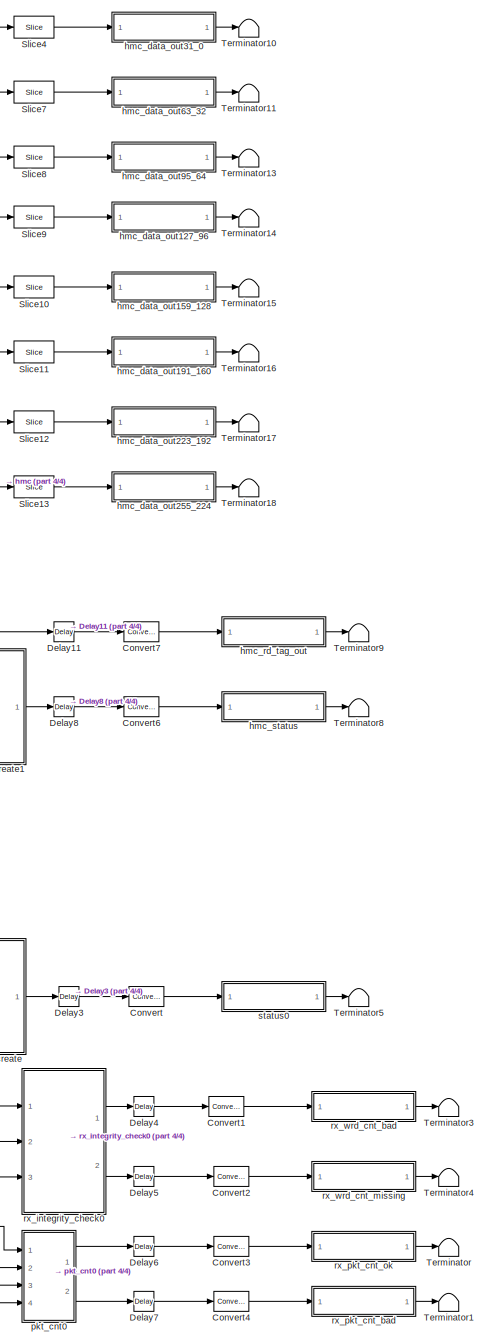
[diagram: root canvas - part 1/4, right side, full height]
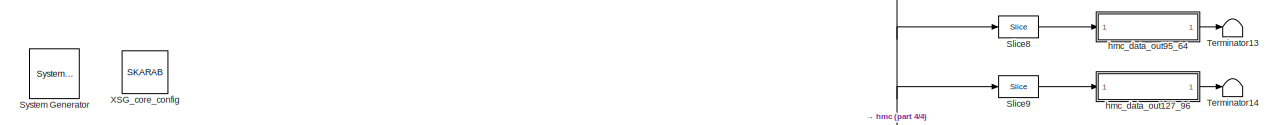
[diagram: root canvas - part 2/4, full width, top band]
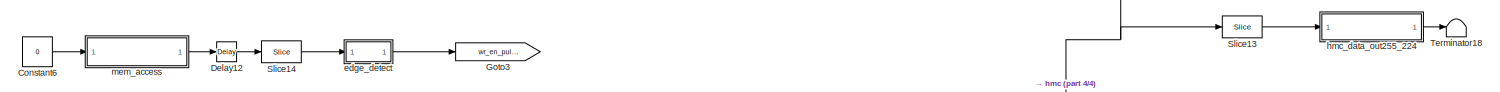
[diagram: root canvas - part 3/4, full width, middle band]
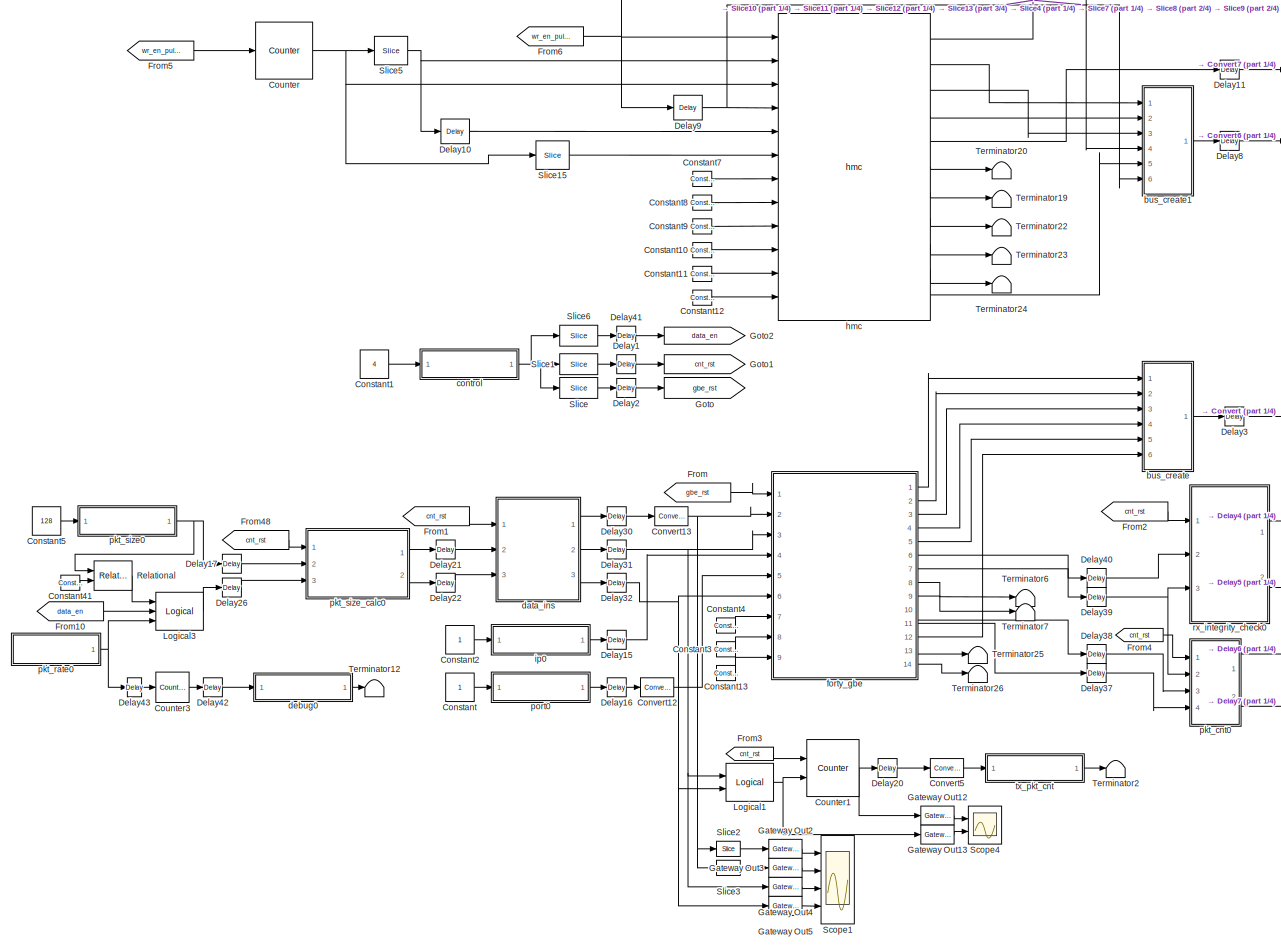
[diagram: root canvas - part 4/4, full width, bottom band]
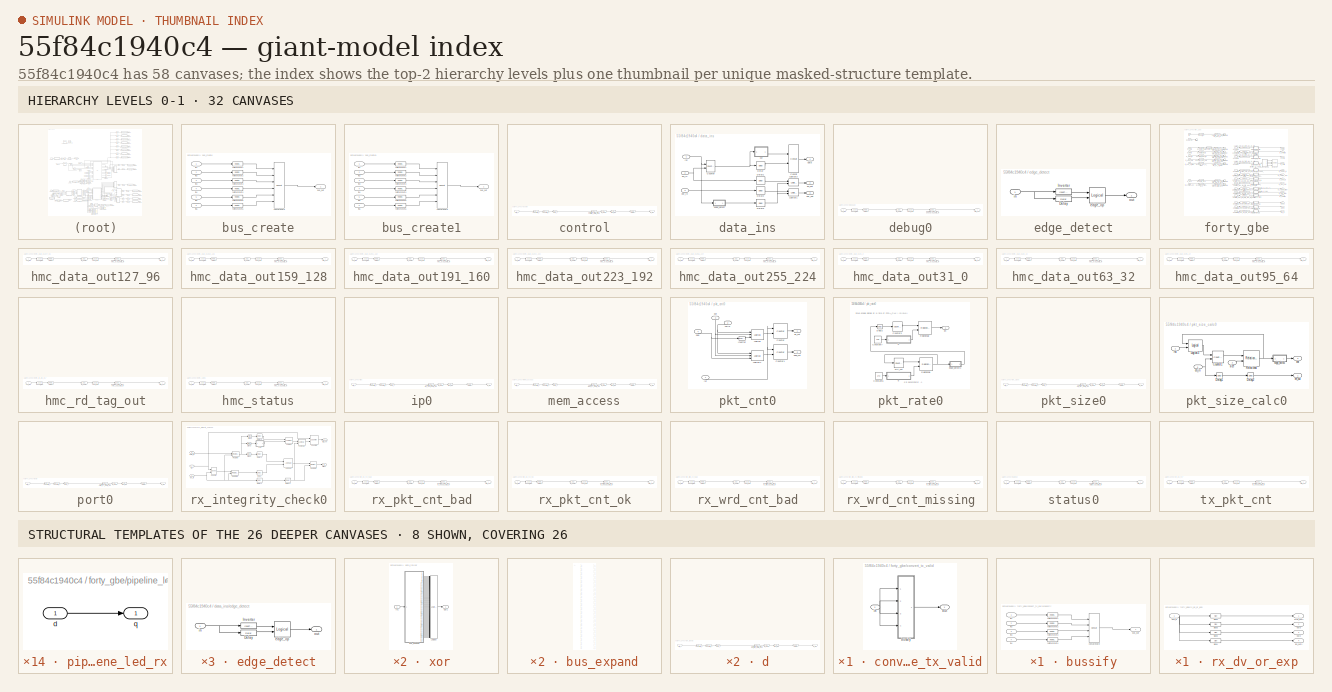
[diagram: thumbnail index - top-2 hierarchy levels (32 canvases) + 8 structural-template representatives of the remaining 26 canvases]
MODEL slx_55f84c1940c4
KIND model
CONFIG AbsTol = auto
CONFIG EnableMultiTasking = off
CONFIG FixedStep = auto
CONFIG MaxStep = auto
CONFIG MinStep = auto
CONFIG RelTol = 1e-3
CONFIG SampleTimeConstraint = Unconstrained
CONFIG Solver = VariableStepDiscrete
CONFIG SolverName = VariableStepDiscrete
CONFIG StartTime = 0.0
CONFIG StopTime = 256.0
BLOCK [Reference]  System Generator  REF=xbsIndex_r4/ System Generator
  AttributesFormatString = System\nGenerator
  Ports = []
  SourceBlock = xbsIndex_r4/ System Generator
  SourceType = Xilinx System Generator Block
  Tag = genX
  UserDataPersistent = on
BLOCK [Constant] Constant
BLOCK [Constant] Constant1
  Value = 4
BLOCK [Reference] Constant10  REF=xbsIndex_r4/Constant
  Ports = [0, 1]
  SourceBlock = xbsIndex_r4/Constant
  SourceType = Xilinx Constant Block Block
BLOCK [Reference] Constant11  REF=xbsIndex_r4/Constant
  Ports = [0, 1]
  SourceBlock = xbsIndex_r4/Constant
  SourceType = Xilinx Constant Block Block
BLOCK [Reference] Constant12  REF=xbsIndex_r4/Constant
  Ports = [0, 1]
  SourceBlock = xbsIndex_r4/Constant
  SourceType = Xilinx Constant Block Block
BLOCK [Reference] Constant13  REF=xbsIndex_r4/Constant
  Ports = [0, 1]
  SourceBlock = xbsIndex_r4/Constant
  SourceType = Xilinx Constant Block Block
BLOCK [Constant] Constant2
BLOCK [Reference] Constant3  REF=xbsIndex_r4/Constant
  Ports = [0, 1]
  SourceBlock = xbsIndex_r4/Constant
  SourceType = Xilinx Constant Block Block
BLOCK [Reference] Constant4  REF=xbsIndex_r4/Constant
  Ports = [0, 1]
  SourceBlock = xbsIndex_r4/Constant
  SourceType = Xilinx Constant Block Block
BLOCK [Reference] Constant41  REF=xbsIndex_r4/Constant
  Ports = [0, 1]
  SourceBlock = xbsIndex_r4/Constant
  SourceType = Xilinx Constant Block Block
BLOCK [Constant] Constant5
  Value = 128
BLOCK [Constant] Constant6
  Value = 0
BLOCK [Reference] Constant7  REF=xbsIndex_r4/Constant
  Ports = [0, 1]
  SourceBlock = xbsIndex_r4/Constant
  SourceType = Xilinx Constant Block Block
BLOCK [Reference] Constant8  REF=xbsIndex_r4/Constant
  Ports = [0, 1]
  SourceBlock = xbsIndex_r4/Constant
  SourceType = Xilinx Constant Block Block
BLOCK [Reference] Constant9  REF=xbsIndex_r4/Constant
  Ports = [0, 1]
  SourceBlock = xbsIndex_r4/Constant
  SourceType = Xilinx Constant Block Block
BLOCK [Reference] Convert  REF=xbsIndex_r4/Convert
  Ports = [1, 1]
  SourceBlock = xbsIndex_r4/Convert
  SourceType = Xilinx Type Converter Block
BLOCK [Reference] Convert1  REF=xbsIndex_r4/Convert
  Ports = [1, 1]
  SourceBlock = xbsIndex_r4/Convert
  SourceType = Xilinx Type Converter Block
BLOCK [Reference] Convert12  REF=xbsIndex_r4/Convert
  Ports = [1, 1]
  SourceBlock = xbsIndex_r4/Convert
  SourceType = Xilinx Type Converter Block
BLOCK [Reference] Convert13  REF=xbsIndex_r4/Convert
  Ports = [1, 1]
  SourceBlock = xbsIndex_r4/Convert
  SourceType = Xilinx Type Converter Block
BLOCK [Reference] Convert2  REF=xbsIndex_r4/Convert
  Ports = [1, 1]
  SourceBlock = xbsIndex_r4/Convert
  SourceType = Xilinx Type Converter Block
BLOCK [Reference] Convert3  REF=xbsIndex_r4/Convert
  Ports = [1, 1]
  SourceBlock = xbsIndex_r4/Convert
  SourceType = Xilinx Type Converter Block
BLOCK [Reference] Convert4  REF=xbsIndex_r4/Convert
  Ports = [1, 1]
  SourceBlock = xbsIndex_r4/Convert
  SourceType = Xilinx Type Converter Block
BLOCK [Reference] Convert5  REF=xbsIndex_r4/Convert
  Ports = [1, 1]
  SourceBlock = xbsIndex_r4/Convert
  SourceType = Xilinx Type Converter Block
BLOCK [Reference] Convert6  REF=xbsIndex_r4/Convert
  Ports = [1, 1]
  SourceBlock = xbsIndex_r4/Convert
  SourceType = Xilinx Type Converter Block
BLOCK [Reference] Convert7  REF=xbsIndex_r4/Convert
  Ports = [1, 1]
  SourceBlock = xbsIndex_r4/Convert
  SourceType = Xilinx Type Converter Block
BLOCK [Reference] Counter  REF=xbsIndex_r4/Counter
  Ports = [1, 1]
  SourceBlock = xbsIndex_r4/Counter
  SourceType = Xilinx Counter Block
BLOCK [Reference] Counter1  REF=xbsIndex_r4/Counter
  Ports = [2, 1]
  SourceBlock = xbsIndex_r4/Counter
  SourceType = Xilinx Counter Block
BLOCK [Reference] Counter3  REF=xbsIndex_r4/Counter
  Ports = [1, 1]
  SourceBlock = xbsIndex_r4/Counter
  SourceType = Xilinx Counter Block
BLOCK [Reference] Delay1  REF=xbsIndex_r4/Delay
  Ports = [1, 1]
  SourceBlock = xbsIndex_r4/Delay
  SourceType = Xilinx Delay Block
BLOCK [Reference] Delay10  REF=xbsIndex_r4/Delay
  Ports = [1, 1]
  SourceBlock = xbsIndex_r4/Delay
  SourceType = Xilinx Delay Block
BLOCK [Reference] Delay11  REF=xbsIndex_r4/Delay
  Ports = [1, 1]
  SourceBlock = xbsIndex_r4/Delay
  SourceType = Xilinx Delay Block
BLOCK [Reference] Delay12  REF=xbsIndex_r4/Delay
  Ports = [1, 1]
  SourceBlock = xbsIndex_r4/Delay
  SourceType = Xilinx Delay Block
BLOCK [Reference] Delay15  REF=xbsIndex_r4/Delay
  Ports = [1, 1]
  SourceBlock = xbsIndex_r4/Delay
  SourceType = Xilinx Delay Block
BLOCK [Reference] Delay16  REF=xbsIndex_r4/Delay
  Ports = [1, 1]
  SourceBlock = xbsIndex_r4/Delay
  SourceType = Xilinx Delay Block
BLOCK [Reference] Delay17  REF=xbsIndex_r4/Delay
  Ports = [1, 1]
  SourceBlock = xbsIndex_r4/Delay
  SourceType = Xilinx Delay Block
BLOCK [Reference] Delay2  REF=xbsIndex_r4/Delay
  Ports = [1, 1]
  SourceBlock = xbsIndex_r4/Delay
  SourceType = Xilinx Delay Block
BLOCK [Reference] Delay20  REF=xbsIndex_r4/Delay
  Ports = [1, 1]
  SourceBlock = xbsIndex_r4/Delay
  SourceType = Xilinx Delay Block
BLOCK [Reference] Delay21  REF=xbsIndex_r4/Delay
  Ports = [1, 1]
  SourceBlock = xbsIndex_r4/Delay
  SourceType = Xilinx Delay Block
BLOCK [Reference] Delay22  REF=xbsIndex_r4/Delay
  Ports = [1, 1]
  SourceBlock = xbsIndex_r4/Delay
  SourceType = Xilinx Delay Block
BLOCK [Reference] Delay26  REF=xbsIndex_r4/Delay
  Ports = [1, 1]
  SourceBlock = xbsIndex_r4/Delay
  SourceType = Xilinx Delay Block
BLOCK [Reference] Delay3  REF=xbsIndex_r4/Delay
  Ports = [1, 1]
  SourceBlock = xbsIndex_r4/Delay
  SourceType = Xilinx Delay Block
BLOCK [Reference] Delay30  REF=xbsIndex_r4/Delay
  Ports = [1, 1]
  SourceBlock = xbsIndex_r4/Delay
  SourceType = Xilinx Delay Block
BLOCK [Reference] Delay31  REF=xbsIndex_r4/Delay
  Ports = [1, 1]
  SourceBlock = xbsIndex_r4/Delay
  SourceType = Xilinx Delay Block
BLOCK [Reference] Delay32  REF=xbsIndex_r4/Delay
  Ports = [1, 1]
  SourceBlock = xbsIndex_r4/Delay
  SourceType = Xilinx Delay Block
BLOCK [Reference] Delay37  REF=xbsIndex_r4/Delay
  Ports = [1, 1]
  SourceBlock = xbsIndex_r4/Delay
  SourceType = Xilinx Delay Block
BLOCK [Reference] Delay38  REF=xbsIndex_r4/Delay
  Ports = [1, 1]
  SourceBlock = xbsIndex_r4/Delay
  SourceType = Xilinx Delay Block
BLOCK [Reference] Delay39  REF=xbsIndex_r4/Delay
  Ports = [1, 1]
  SourceBlock = xbsIndex_r4/Delay
  SourceType = Xilinx Delay Block
BLOCK [Reference] Delay4  REF=xbsIndex_r4/Delay
  Ports = [1, 1]
  SourceBlock = xbsIndex_r4/Delay
  SourceType = Xilinx Delay Block
BLOCK [Reference] Delay40  REF=xbsIndex_r4/Delay
  Ports = [1, 1]
  SourceBlock = xbsIndex_r4/Delay
  SourceType = Xilinx Delay Block
BLOCK [Reference] Delay41  REF=xbsIndex_r4/Delay
  Ports = [1, 1]
  SourceBlock = xbsIndex_r4/Delay
  SourceType = Xilinx Delay Block
BLOCK [Reference] Delay42  REF=xbsIndex_r4/Delay
  Ports = [1, 1]
  SourceBlock = xbsIndex_r4/Delay
  SourceType = Xilinx Delay Block
BLOCK [Reference] Delay43  REF=xbsIndex_r4/Delay
  Ports = [1, 1]
  SourceBlock = xbsIndex_r4/Delay
  SourceType = Xilinx Delay Block
BLOCK [Reference] Delay5  REF=xbsIndex_r4/Delay
  Ports = [1, 1]
  SourceBlock = xbsIndex_r4/Delay
  SourceType = Xilinx Delay Block
BLOCK [Reference] Delay6  REF=xbsIndex_r4/Delay
  Ports = [1, 1]
  SourceBlock = xbsIndex_r4/Delay
  SourceType = Xilinx Delay Block
BLOCK [Reference] Delay7  REF=xbsIndex_r4/Delay
  Ports = [1, 1]
  SourceBlock = xbsIndex_r4/Delay
  SourceType = Xilinx Delay Block
BLOCK [Reference] Delay8  REF=xbsIndex_r4/Delay
  Ports = [1, 1]
  SourceBlock = xbsIndex_r4/Delay
  SourceType = Xilinx Delay Block
BLOCK [Reference] Delay9  REF=xbsIndex_r4/Delay
  Ports = [1, 1]
  SourceBlock = xbsIndex_r4/Delay
  SourceType = Xilinx Delay Block
BLOCK [From] From
  CloseFcn = tagdialog Close
  GotoTag = gbe_rst
BLOCK [From] From1
  CloseFcn = tagdialog Close
  GotoTag = cnt_rst
BLOCK [From] From10
  CloseFcn = tagdialog Close
  GotoTag = data_en
BLOCK [From] From2
  CloseFcn = tagdialog Close
  GotoTag = cnt_rst
BLOCK [From] From3
  CloseFcn = tagdialog Close
  GotoTag = cnt_rst
BLOCK [From] From4
  CloseFcn = tagdialog Close
  GotoTag = cnt_rst
BLOCK [From] From48
  CloseFcn = tagdialog Close
  GotoTag = cnt_rst
BLOCK [From] From5
  CloseFcn = tagdialog Close
  GotoTag = wr_en_pulse
BLOCK [From] From6
  CloseFcn = tagdialog Close
  GotoTag = wr_en_pulse
BLOCK [Reference] Gateway Out12  REF=xbsIndex_r4/Gateway Out
  Ports = [1, 1]
  SourceBlock = xbsIndex_r4/Gateway Out
  SourceType = Xilinx Gateway Out Block
BLOCK [Reference] Gateway Out13  REF=xbsIndex_r4/Gateway Out
  Ports = [1, 1]
  SourceBlock = xbsIndex_r4/Gateway Out
  SourceType = Xilinx Gateway Out Block
BLOCK [Reference] Gateway Out2  REF=xbsIndex_r4/Gateway Out
  Ports = [1, 1]
  SourceBlock = xbsIndex_r4/Gateway Out
  SourceType = Xilinx Gateway Out Block
BLOCK [Reference] Gateway Out3  REF=xbsIndex_r4/Gateway Out
  Ports = [1, 1]
  SourceBlock = xbsIndex_r4/Gateway Out
  SourceType = Xilinx Gateway Out Block
BLOCK [Reference] Gateway Out4  REF=xbsIndex_r4/Gateway Out
  Ports = [1, 1]
  SourceBlock = xbsIndex_r4/Gateway Out
  SourceType = Xilinx Gateway Out Block
BLOCK [Reference] Gateway Out5  REF=xbsIndex_r4/Gateway Out
  Ports = [1, 1]
  SourceBlock = xbsIndex_r4/Gateway Out
  SourceType = Xilinx Gateway Out Block
BLOCK [Goto] Goto
  GotoTag = gbe_rst
BLOCK [Goto] Goto1
  GotoTag = cnt_rst
BLOCK [Goto] Goto2
  GotoTag = data_en
BLOCK [Goto] Goto3
  GotoTag = wr_en_pulse
BLOCK [Reference] Logical1  REF=xbsIndex_r4/Logical
  Ports = [2, 1]
  SourceBlock = xbsIndex_r4/Logical
  SourceType = Xilinx Logical Block Block
BLOCK [Reference] Logical3  REF=xbsIndex_r4/Logical
  Ports = [3, 1]
  SourceBlock = xbsIndex_r4/Logical
  SourceType = Xilinx Logical Block Block
BLOCK [Reference] Relational  REF=xbsIndex_r4/Relational
  Ports = [2, 1]
  SourceBlock = xbsIndex_r4/Relational
  SourceType = Xilinx Arithmetic Relational Operator Block
BLOCK [Scope] Scope1
  Floating = off
  NumInputPorts = 4
  Ports = [4]
  ScopeSpecificationString = Simulink.scopes.TimeScopeBlockCfg('CurrentConfiguration', extmgr.ConfigurationSet(extmgr.Configuration('Core','General UI',true),extmgr.Configuration('Core','Source UI',true),extmgr.Configuration('Sources','WiredSimulink',true,'DataLoggingVariableName','ScopeData1','DataLoggingSaveFormat','StructureWithTime','DataLoggingLimitDataPoints',true,'DataLoggingDecimation','1','DataLoggingDecimateData',tr...<+3690ch>
BLOCK [Scope] Scope4
  Floating = off
  NumInputPorts = 2
  Ports = [2]
  ScopeSpecificationString = Simulink.scopes.TimeScopeBlockCfg('CurrentConfiguration', extmgr.ConfigurationSet(extmgr.Configuration('Core','General UI',true),extmgr.Configuration('Core','Source UI',true),extmgr.Configuration('Sources','WiredSimulink',true,'DataLoggingVariableName','ScopeData2','DataLoggingSaveFormat','StructureWithTime','DataLoggingLimitDataPoints',true,'DataLoggingDecimation','1','DataLoggingDecimateData',tr...<+2336ch>
BLOCK [Reference] Slice  REF=xbsIndex_r4/Slice
  Ports = [1, 1]
  SourceBlock = xbsIndex_r4/Slice
  SourceType = Xilinx Bit Slice Extractor Block
BLOCK [Reference] Slice1  REF=xbsIndex_r4/Slice
  Ports = [1, 1]
  SourceBlock = xbsIndex_r4/Slice
  SourceType = Xilinx Bit Slice Extractor Block
BLOCK [Reference] Slice10  REF=xbsIndex_r4/Slice
  Ports = [1, 1]
  SourceBlock = xbsIndex_r4/Slice
  SourceType = Xilinx Bit Slice Extractor Block
BLOCK [Reference] Slice11  REF=xbsIndex_r4/Slice
  Ports = [1, 1]
  SourceBlock = xbsIndex_r4/Slice
  SourceType = Xilinx Bit Slice Extractor Block
BLOCK [Reference] Slice12  REF=xbsIndex_r4/Slice
  Ports = [1, 1]
  SourceBlock = xbsIndex_r4/Slice
  SourceType = Xilinx Bit Slice Extractor Block
BLOCK [Reference] Slice13  REF=xbsIndex_r4/Slice
  Ports = [1, 1]
  SourceBlock = xbsIndex_r4/Slice
  SourceType = Xilinx Bit Slice Extractor Block
BLOCK [Reference] Slice14  REF=xbsIndex_r4/Slice
  Ports = [1, 1]
  SourceBlock = xbsIndex_r4/Slice
  SourceType = Xilinx Bit Slice Extractor Block
BLOCK [Reference] Slice15  REF=xbsIndex_r4/Slice
  Ports = [1, 1]
  SourceBlock = xbsIndex_r4/Slice
  SourceType = Xilinx Bit Slice Extractor Block
BLOCK [Reference] Slice2  REF=xbsIndex_r4/Slice
  Ports = [1, 1]
  SourceBlock = xbsIndex_r4/Slice
  SourceType = Xilinx Bit Slice Extractor Block
BLOCK [Reference] Slice3  REF=xbsIndex_r4/Slice
  Ports = [1, 1]
  SourceBlock = xbsIndex_r4/Slice
  SourceType = Xilinx Bit Slice Extractor Block
BLOCK [Reference] Slice4  REF=xbsIndex_r4/Slice
  Ports = [1, 1]
  SourceBlock = xbsIndex_r4/Slice
  SourceType = Xilinx Bit Slice Extractor Block
BLOCK [Reference] Slice5  REF=xbsIndex_r4/Slice
  Ports = [1, 1]
  SourceBlock = xbsIndex_r4/Slice
  SourceType = Xilinx Bit Slice Extractor Block
BLOCK [Reference] Slice6  REF=xbsIndex_r4/Slice
  Ports = [1, 1]
  SourceBlock = xbsIndex_r4/Slice
  SourceType = Xilinx Bit Slice Extractor Block
BLOCK [Reference] Slice7  REF=xbsIndex_r4/Slice
  Ports = [1, 1]
  SourceBlock = xbsIndex_r4/Slice
  SourceType = Xilinx Bit Slice Extractor Block
BLOCK [Reference] Slice8  REF=xbsIndex_r4/Slice
  Ports = [1, 1]
  SourceBlock = xbsIndex_r4/Slice
  SourceType = Xilinx Bit Slice Extractor Block
BLOCK [Reference] Slice9  REF=xbsIndex_r4/Slice
  Ports = [1, 1]
  SourceBlock = xbsIndex_r4/Slice
  SourceType = Xilinx Bit Slice Extractor Block
BLOCK [Terminator] Terminator
BLOCK [Terminator] Terminator1
BLOCK [Terminator] Terminator10
BLOCK [Terminator] Terminator11
BLOCK [Terminator] Terminator12
BLOCK [Terminator] Terminator13
BLOCK [Terminator] Terminator14
BLOCK [Terminator] Terminator15
BLOCK [Terminator] Terminator16
BLOCK [Terminator] Terminator17
BLOCK [Terminator] Terminator18
BLOCK [Terminator] Terminator19
BLOCK [Terminator] Terminator2
BLOCK [Terminator] Terminator20
BLOCK [Terminator] Terminator22
BLOCK [Terminator] Terminator23
BLOCK [Terminator] Terminator24
BLOCK [Terminator] Terminator25
BLOCK [Terminator] Terminator26
BLOCK [Terminator] Terminator3
BLOCK [Terminator] Terminator4
BLOCK [Terminator] Terminator5
BLOCK [Terminator] Terminator6
BLOCK [Terminator] Terminator7
BLOCK [Terminator] Terminator8
BLOCK [Terminator] Terminator9
BLOCK [Reference] XSG_core_config  REF=xps_library/Platforms/SKARAB  (lib defined in mdl_00b5cec29cd0, mdl_02ab6ecaa3d1, +5 more)
  Ports = []
  SourceBlock = xps_library/Platforms/SKARAB
  SourceProductName = CASPER XPS Blockset
  SourceType = xsg core config
  Tag = xps:xsg
BLOCK [SubSystem] bus_create
  AncestorBlock = casper_library_flow_control/bus_create
  Ports = [6, 1]
  RequestExecContextInheritance = off
  UserDataPersistent = on
BLOCK [Outport] bus_create/bus_out
  IconDisplay = Port number
BLOCK [Reference] bus_create/concatenate  REF=xbsIndex_r4/Concat
  Ports = [6, 1]
  SourceBlock = xbsIndex_r4/Concat
  SourceType = Xilinx Bus Concatenator Block
BLOCK [Inport] bus_create/in1
  IconDisplay = Port number
BLOCK [Inport] bus_create/in2
  IconDisplay = Port number
  Port = 2
BLOCK [Inport] bus_create/in3
  IconDisplay = Port number
  Port = 3
BLOCK [Inport] bus_create/in4
  IconDisplay = Port number
  Port = 4
BLOCK [Inport] bus_create/in5
  IconDisplay = Port number
  Port = 5
BLOCK [Inport] bus_create/in6
  IconDisplay = Port number
  Port = 6
BLOCK [Reference] bus_create/reinterpret1  REF=xbsIndex_r4/Reinterpret
  Ports = [1, 1]
  SourceBlock = xbsIndex_r4/Reinterpret
  SourceType = Xilinx Type Reinterpreter Block
BLOCK [Reference] bus_create/reinterpret2  REF=xbsIndex_r4/Reinterpret
  Ports = [1, 1]
  SourceBlock = xbsIndex_r4/Reinterpret
  SourceType = Xilinx Type Reinterpreter Block
BLOCK [Reference] bus_create/reinterpret3  REF=xbsIndex_r4/Reinterpret
  Ports = [1, 1]
  SourceBlock = xbsIndex_r4/Reinterpret
  SourceType = Xilinx Type Reinterpreter Block
BLOCK [Reference] bus_create/reinterpret4  REF=xbsIndex_r4/Reinterpret
  Ports = [1, 1]
  SourceBlock = xbsIndex_r4/Reinterpret
  SourceType = Xilinx Type Reinterpreter Block
BLOCK [Reference] bus_create/reinterpret5  REF=xbsIndex_r4/Reinterpret
  Ports = [1, 1]
  SourceBlock = xbsIndex_r4/Reinterpret
  SourceType = Xilinx Type Reinterpreter Block
BLOCK [Reference] bus_create/reinterpret6  REF=xbsIndex_r4/Reinterpret
  Ports = [1, 1]
  SourceBlock = xbsIndex_r4/Reinterpret
  SourceType = Xilinx Type Reinterpreter Block
BLOCK [SubSystem] bus_create1
  AncestorBlock = casper_library_flow_control/bus_create
  Ports = [6, 1]
  RequestExecContextInheritance = off
  UserDataPersistent = on
BLOCK [Outport] bus_create1/bus_out
  IconDisplay = Port number
BLOCK [Reference] bus_create1/concatenate  REF=xbsIndex_r4/Concat
  Ports = [6, 1]
  SourceBlock = xbsIndex_r4/Concat
  SourceType = Xilinx Bus Concatenator Block
BLOCK [Inport] bus_create1/in1
  IconDisplay = Port number
BLOCK [Inport] bus_create1/in2
  IconDisplay = Port number
  Port = 2
BLOCK [Inport] bus_create1/in3
  IconDisplay = Port number
  Port = 3
BLOCK [Inport] bus_create1/in4
  IconDisplay = Port number
  Port = 4
BLOCK [Inport] bus_create1/in5
  IconDisplay = Port number
  Port = 5
BLOCK [Inport] bus_create1/in6
  IconDisplay = Port number
  Port = 6
BLOCK [Reference] bus_create1/reinterpret1  REF=xbsIndex_r4/Reinterpret
  Ports = [1, 1]
  SourceBlock = xbsIndex_r4/Reinterpret
  SourceType = Xilinx Type Reinterpreter Block
BLOCK [Reference] bus_create1/reinterpret2  REF=xbsIndex_r4/Reinterpret
  Ports = [1, 1]
  SourceBlock = xbsIndex_r4/Reinterpret
  SourceType = Xilinx Type Reinterpreter Block
BLOCK [Reference] bus_create1/reinterpret3  REF=xbsIndex_r4/Reinterpret
  Ports = [1, 1]
  SourceBlock = xbsIndex_r4/Reinterpret
  SourceType = Xilinx Type Reinterpreter Block
BLOCK [Reference] bus_create1/reinterpret4  REF=xbsIndex_r4/Reinterpret
  Ports = [1, 1]
  SourceBlock = xbsIndex_r4/Reinterpret
  SourceType = Xilinx Type Reinterpreter Block
BLOCK [Reference] bus_create1/reinterpret5  REF=xbsIndex_r4/Reinterpret
  Ports = [1, 1]
  SourceBlock = xbsIndex_r4/Reinterpret
  SourceType = Xilinx Type Reinterpreter Block
BLOCK [Reference] bus_create1/reinterpret6  REF=xbsIndex_r4/Reinterpret
  Ports = [1, 1]
  SourceBlock = xbsIndex_r4/Reinterpret
  SourceType = Xilinx Type Reinterpreter Block
BLOCK [SubSystem] control
  AncestorBlock = xps_library/Memory/software_register
  AttributesFormatString = 1input:uf32.0 = 32 bits
  Ports = [1, 1]
  RequestExecContextInheritance = off
  Tag = xps:sw_reg
BLOCK [DataTypeConversion] control/convert1_1
  LockScale = on
  OutDataTypeStr = fixdt('ufix32_En0')
  RndMeth = Floor
  SaturateOnIntegerOverflow = off
BLOCK [DataTypeConversion] control/convert2_1
  ConvertRealWorld = Stored Integer (SI)
  LockScale = on
  OutDataTypeStr = fixdt('ufix32_En0')
  RndMeth = Floor
  SaturateOnIntegerOverflow = off
BLOCK [Gain] control/gain_1
  OutDataTypeStr = Inherit: Inherit via internal rule
  ParamDataTypeStr = Inherit: Inherit via internal rule
  SaturateOnIntegerOverflow = off
BLOCK [Outport] control/in_reg
  IconDisplay = Port number
BLOCK [Reference] control/io_delay  REF=xbsIndex_r4/Delay
  Ports = [1, 1]
  SourceBlock = xbsIndex_r4/Delay
  SourceType = Xilinx Delay Block
BLOCK [Reference] control/reint1  REF=xbsIndex_r4/Reinterpret
  Ports = [1, 1]
  SourceBlock = xbsIndex_r4/Reinterpret
  SourceType = Xilinx Type Reinterpreter Block
BLOCK [Inport] control/sim_1
  IconDisplay = Port number
BLOCK [Reference] control/skarab_hmc_test_control_user_data_out  REF=xbsIndex_r4/Gateway In
  Ports = [1, 1]
  SourceBlock = xbsIndex_r4/Gateway In
  SourceType = Xilinx Gateway In Block
BLOCK [Reference] control/slice_reg  REF=xbsIndex_r4/Slice
  Ports = [1, 1]
  SourceBlock = xbsIndex_r4/Slice
  SourceType = Xilinx Bit Slice Extractor Block
BLOCK [SubSystem] data_ins
  Ports = [3, 3]
  RequestExecContextInheritance = off
BLOCK [Reference] data_ins/Concat  REF=xbsIndex_r4/Concat
  Ports = [2, 1]
  SourceBlock = xbsIndex_r4/Concat
  SourceType = Xilinx Bus Concatenator Block
BLOCK [Reference] data_ins/Counter  REF=xbsIndex_r4/Counter
  Ports = [2, 1]
  SourceBlock = xbsIndex_r4/Counter
  SourceType = Xilinx Counter Block
BLOCK [Reference] data_ins/Delay  REF=xbsIndex_r4/Delay
  Ports = [1, 1]
  SourceBlock = xbsIndex_r4/Delay
  SourceType = Xilinx Delay Block
BLOCK [Reference] data_ins/Delay1  REF=xbsIndex_r4/Delay
  Ports = [1, 1]
  SourceBlock = xbsIndex_r4/Delay
  SourceType = Xilinx Delay Block
BLOCK [Reference] data_ins/Delay2  REF=xbsIndex_r4/Delay
  Ports = [1, 1]
  SourceBlock = xbsIndex_r4/Delay
  SourceType = Xilinx Delay Block
BLOCK [Reference] data_ins/Delay3  REF=xbsIndex_r4/Delay
  Ports = [1, 1]
  SourceBlock = xbsIndex_r4/Delay
  SourceType = Xilinx Delay Block
BLOCK [Reference] data_ins/Logical1  REF=xbsIndex_r4/Logical
  Ports = [2, 1]
  SourceBlock = xbsIndex_r4/Logical
  SourceType = Xilinx Logical Block Block
BLOCK [Reference] data_ins/Logical3  REF=xbsIndex_r4/Logical
  Ports = [2, 1]
  SourceBlock = xbsIndex_r4/Logical
  SourceType = Xilinx Logical Block Block
BLOCK [Outport] data_ins/data
  IconDisplay = Port number
BLOCK [SubSystem] data_ins/edge_detect
  AncestorBlock = casper_library_misc/edge_detect
  AttributesFormatString = rising edges\nactive high
  Ports = [1, 1]
  RequestExecContextInheritance = off
  UserDataPersistent = on
BLOCK [Reference] data_ins/edge_detect/Delay  REF=xbsIndex_r4/Delay
  Ports = [1, 1]
  SourceBlock = xbsIndex_r4/Delay
  SourceType = Xilinx Delay Block
BLOCK [Reference] data_ins/edge_detect/Inverter  REF=xbsIndex_r4/Inverter
  Ports = [1, 1]
  SourceBlock = xbsIndex_r4/Inverter
  SourceType = Xilinx Inverter Block
BLOCK [Reference] data_ins/edge_detect/edge_op  REF=xbsIndex_r4/Logical
  Ports = [2, 1]
  SourceBlock = xbsIndex_r4/Logical
  SourceType = Xilinx Logical Block Block
BLOCK [Inport] data_ins/edge_detect/in
  IconDisplay = Port number
BLOCK [Outport] data_ins/edge_detect/out
  IconDisplay = Port number
BLOCK [Inport] data_ins/en_in
  IconDisplay = Port number
  Port = 2
BLOCK [Outport] data_ins/en_out
  IconDisplay = Port number
  Port = 2
BLOCK [Inport] data_ins/eof_in
  IconDisplay = Port number
  Port = 3
BLOCK [Outport] data_ins/eof_out
  IconDisplay = Port number
  Port = 3
BLOCK [Inport] data_ins/rst
  IconDisplay = Port number
BLOCK [SubSystem] data_ins/xor
  Ports = [1, 1]
  RequestExecContextInheritance = off
BLOCK [Inport] data_ins/xor/In1
  IconDisplay = Port number
BLOCK [Reference] data_ins/xor/Logical  REF=xbsIndex_r4/Logical
  Ports = [63, 1]
  SourceBlock = xbsIndex_r4/Logical
  SourceType = Xilinx Logical Block Block
BLOCK [Outport] data_ins/xor/Out1
  IconDisplay = Port number
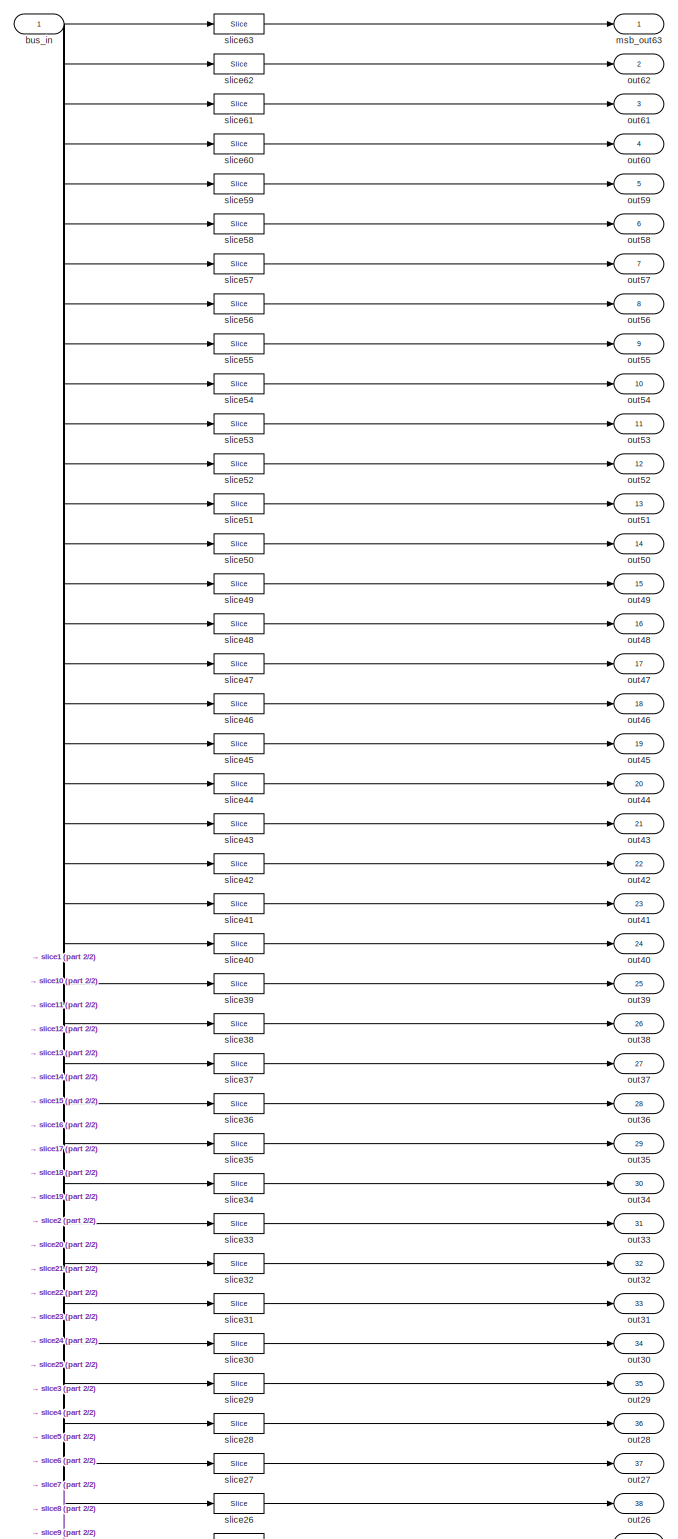
[diagram: data_ins/xor/bus_expand - part 1/2, full width, top band]
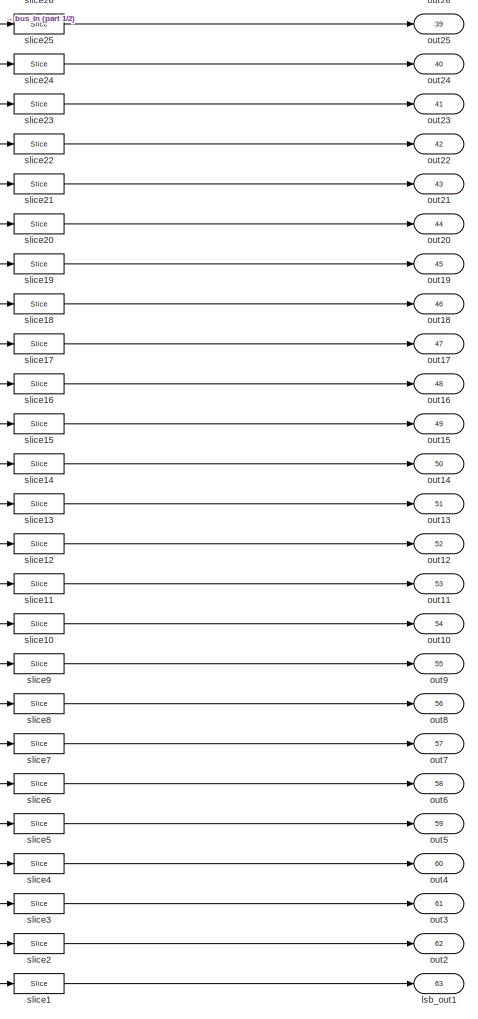
[diagram: data_ins/xor/bus_expand - part 2/2, bottom center region]
BLOCK [SubSystem] data_ins/xor/bus_expand
  AncestorBlock = casper_library_flow_control/bus_expand
  AttributesFormatString = 63 outputs
  Ports = [1, 63]
  RequestExecContextInheritance = off
  UserDataPersistent = on
BLOCK [Inport] data_ins/xor/bus_expand/bus_in
  IconDisplay = Port number
BLOCK [Outport] data_ins/xor/bus_expand/lsb_out1
  IconDisplay = Port number
  Port = 63
BLOCK [Outport] data_ins/xor/bus_expand/msb_out63
  IconDisplay = Port number
BLOCK [Outport] data_ins/xor/bus_expand/out10
  IconDisplay = Port number
  Port = 54
BLOCK [Outport] data_ins/xor/bus_expand/out11
  IconDisplay = Port number
  Port = 53
BLOCK [Outport] data_ins/xor/bus_expand/out12
  IconDisplay = Port number
  Port = 52
BLOCK [Outport] data_ins/xor/bus_expand/out13
  IconDisplay = Port number
  Port = 51
BLOCK [Outport] data_ins/xor/bus_expand/out14
  IconDisplay = Port number
  Port = 50
BLOCK [Outport] data_ins/xor/bus_expand/out15
  IconDisplay = Port number
  Port = 49
BLOCK [Outport] data_ins/xor/bus_expand/out16
  IconDisplay = Port number
  Port = 48
BLOCK [Outport] data_ins/xor/bus_expand/out17
  IconDisplay = Port number
  Port = 47
BLOCK [Outport] data_ins/xor/bus_expand/out18
  IconDisplay = Port number
  Port = 46
BLOCK [Outport] data_ins/xor/bus_expand/out19
  IconDisplay = Port number
  Port = 45
BLOCK [Outport] data_ins/xor/bus_expand/out2
  IconDisplay = Port number
  Port = 62
BLOCK [Outport] data_ins/xor/bus_expand/out20
  IconDisplay = Port number
  Port = 44
BLOCK [Outport] data_ins/xor/bus_expand/out21
  IconDisplay = Port number
  Port = 43
BLOCK [Outport] data_ins/xor/bus_expand/out22
  IconDisplay = Port number
  Port = 42
BLOCK [Outport] data_ins/xor/bus_expand/out23
  IconDisplay = Port number
  Port = 41
BLOCK [Outport] data_ins/xor/bus_expand/out24
  IconDisplay = Port number
  Port = 40
BLOCK [Outport] data_ins/xor/bus_expand/out25
  IconDisplay = Port number
  Port = 39
BLOCK [Outport] data_ins/xor/bus_expand/out26
  IconDisplay = Port number
  Port = 38
BLOCK [Outport] data_ins/xor/bus_expand/out27
  IconDisplay = Port number
  Port = 37
BLOCK [Outport] data_ins/xor/bus_expand/out28
  IconDisplay = Port number
  Port = 36
BLOCK [Outport] data_ins/xor/bus_expand/out29
  IconDisplay = Port number
  Port = 35
BLOCK [Outport] data_ins/xor/bus_expand/out3
  IconDisplay = Port number
  Port = 61
BLOCK [Outport] data_ins/xor/bus_expand/out30
  IconDisplay = Port number
  Port = 34
BLOCK [Outport] data_ins/xor/bus_expand/out31
  IconDisplay = Port number
  Port = 33
BLOCK [Outport] data_ins/xor/bus_expand/out32
  IconDisplay = Port number
  Port = 32
BLOCK [Outport] data_ins/xor/bus_expand/out33
  IconDisplay = Port number
  Port = 31
BLOCK [Outport] data_ins/xor/bus_expand/out34
  IconDisplay = Port number
  Port = 30
BLOCK [Outport] data_ins/xor/bus_expand/out35
  IconDisplay = Port number
  Port = 29
BLOCK [Outport] data_ins/xor/bus_expand/out36
  IconDisplay = Port number
  Port = 28
BLOCK [Outport] data_ins/xor/bus_expand/out37
  IconDisplay = Port number
  Port = 27
BLOCK [Outport] data_ins/xor/bus_expand/out38
  IconDisplay = Port number
  Port = 26
BLOCK [Outport] data_ins/xor/bus_expand/out39
  IconDisplay = Port number
  Port = 25
BLOCK [Outport] data_ins/xor/bus_expand/out4
  IconDisplay = Port number
  Port = 60
BLOCK [Outport] data_ins/xor/bus_expand/out40
  IconDisplay = Port number
  Port = 24
BLOCK [Outport] data_ins/xor/bus_expand/out41
  IconDisplay = Port number
  Port = 23
BLOCK [Outport] data_ins/xor/bus_expand/out42
  IconDisplay = Port number
  Port = 22
BLOCK [Outport] data_ins/xor/bus_expand/out43
  IconDisplay = Port number
  Port = 21
BLOCK [Outport] data_ins/xor/bus_expand/out44
  IconDisplay = Port number
  Port = 20
BLOCK [Outport] data_ins/xor/bus_expand/out45
  IconDisplay = Port number
  Port = 19
BLOCK [Outport] data_ins/xor/bus_expand/out46
  IconDisplay = Port number
  Port = 18
BLOCK [Outport] data_ins/xor/bus_expand/out47
  IconDisplay = Port number
  Port = 17
BLOCK [Outport] data_ins/xor/bus_expand/out48
  IconDisplay = Port number
  Port = 16
BLOCK [Outport] data_ins/xor/bus_expand/out49
  IconDisplay = Port number
  Port = 15
BLOCK [Outport] data_ins/xor/bus_expand/out5
  IconDisplay = Port number
  Port = 59
BLOCK [Outport] data_ins/xor/bus_expand/out50
  IconDisplay = Port number
  Port = 14
BLOCK [Outport] data_ins/xor/bus_expand/out51
  IconDisplay = Port number
  Port = 13
BLOCK [Outport] data_ins/xor/bus_expand/out52
  IconDisplay = Port number
  Port = 12
BLOCK [Outport] data_ins/xor/bus_expand/out53
  IconDisplay = Port number
  Port = 11
BLOCK [Outport] data_ins/xor/bus_expand/out54
  IconDisplay = Port number
  Port = 10
BLOCK [Outport] data_ins/xor/bus_expand/out55
  IconDisplay = Port number
  Port = 9
BLOCK [Outport] data_ins/xor/bus_expand/out56
  IconDisplay = Port number
  Port = 8
BLOCK [Outport] data_ins/xor/bus_expand/out57
  IconDisplay = Port number
  Port = 7
BLOCK [Outport] data_ins/xor/bus_expand/out58
  IconDisplay = Port number
  Port = 6
BLOCK [Outport] data_ins/xor/bus_expand/out59
  IconDisplay = Port number
  Port = 5
BLOCK [Outport] data_ins/xor/bus_expand/out6
  IconDisplay = Port number
  Port = 58
BLOCK [Outport] data_ins/xor/bus_expand/out60
  IconDisplay = Port number
  Port = 4
BLOCK [Outport] data_ins/xor/bus_expand/out61
  IconDisplay = Port number
  Port = 3
BLOCK [Outport] data_ins/xor/bus_expand/out62
  IconDisplay = Port number
  Port = 2
BLOCK [Outport] data_ins/xor/bus_expand/out7
  IconDisplay = Port number
  Port = 57
BLOCK [Outport] data_ins/xor/bus_expand/out8
  IconDisplay = Port number
  Port = 56
BLOCK [Outport] data_ins/xor/bus_expand/out9
  IconDisplay = Port number
  Port = 55
BLOCK [Reference] data_ins/xor/bus_expand/slice1  REF=xbsIndex_r4/Slice
  Ports = [1, 1]
  SourceBlock = xbsIndex_r4/Slice
  SourceType = Xilinx Bit Slice Extractor Block
BLOCK [Reference] data_ins/xor/bus_expand/slice10  REF=xbsIndex_r4/Slice
  Ports = [1, 1]
  SourceBlock = xbsIndex_r4/Slice
  SourceType = Xilinx Bit Slice Extractor Block
BLOCK [Reference] data_ins/xor/bus_expand/slice11  REF=xbsIndex_r4/Slice
  Ports = [1, 1]
  SourceBlock = xbsIndex_r4/Slice
  SourceType = Xilinx Bit Slice Extractor Block
BLOCK [Reference] data_ins/xor/bus_expand/slice12  REF=xbsIndex_r4/Slice
  Ports = [1, 1]
  SourceBlock = xbsIndex_r4/Slice
  SourceType = Xilinx Bit Slice Extractor Block
BLOCK [Reference] data_ins/xor/bus_expand/slice13  REF=xbsIndex_r4/Slice
  Ports = [1, 1]
  SourceBlock = xbsIndex_r4/Slice
  SourceType = Xilinx Bit Slice Extractor Block
BLOCK [Reference] data_ins/xor/bus_expand/slice14  REF=xbsIndex_r4/Slice
  Ports = [1, 1]
  SourceBlock = xbsIndex_r4/Slice
  SourceType = Xilinx Bit Slice Extractor Block
BLOCK [Reference] data_ins/xor/bus_expand/slice15  REF=xbsIndex_r4/Slice
  Ports = [1, 1]
  SourceBlock = xbsIndex_r4/Slice
  SourceType = Xilinx Bit Slice Extractor Block
BLOCK [Reference] data_ins/xor/bus_expand/slice16  REF=xbsIndex_r4/Slice
  Ports = [1, 1]
  SourceBlock = xbsIndex_r4/Slice
  SourceType = Xilinx Bit Slice Extractor Block
BLOCK [Reference] data_ins/xor/bus_expand/slice17  REF=xbsIndex_r4/Slice
  Ports = [1, 1]
  SourceBlock = xbsIndex_r4/Slice
  SourceType = Xilinx Bit Slice Extractor Block
BLOCK [Reference] data_ins/xor/bus_expand/slice18  REF=xbsIndex_r4/Slice
  Ports = [1, 1]
  SourceBlock = xbsIndex_r4/Slice
  SourceType = Xilinx Bit Slice Extractor Block
BLOCK [Reference] data_ins/xor/bus_expand/slice19  REF=xbsIndex_r4/Slice
  Ports = [1, 1]
  SourceBlock = xbsIndex_r4/Slice
  SourceType = Xilinx Bit Slice Extractor Block
BLOCK [Reference] data_ins/xor/bus_expand/slice2  REF=xbsIndex_r4/Slice
  Ports = [1, 1]
  SourceBlock = xbsIndex_r4/Slice
  SourceType = Xilinx Bit Slice Extractor Block
BLOCK [Reference] data_ins/xor/bus_expand/slice20  REF=xbsIndex_r4/Slice
  Ports = [1, 1]
  SourceBlock = xbsIndex_r4/Slice
  SourceType = Xilinx Bit Slice Extractor Block
BLOCK [Reference] data_ins/xor/bus_expand/slice21  REF=xbsIndex_r4/Slice
  Ports = [1, 1]
  SourceBlock = xbsIndex_r4/Slice
  SourceType = Xilinx Bit Slice Extractor Block
BLOCK [Reference] data_ins/xor/bus_expand/slice22  REF=xbsIndex_r4/Slice
  Ports = [1, 1]
  SourceBlock = xbsIndex_r4/Slice
  SourceType = Xilinx Bit Slice Extractor Block
BLOCK [Reference] data_ins/xor/bus_expand/slice23  REF=xbsIndex_r4/Slice
  Ports = [1, 1]
  SourceBlock = xbsIndex_r4/Slice
  SourceType = Xilinx Bit Slice Extractor Block
BLOCK [Reference] data_ins/xor/bus_expand/slice24  REF=xbsIndex_r4/Slice
  Ports = [1, 1]
  SourceBlock = xbsIndex_r4/Slice
  SourceType = Xilinx Bit Slice Extractor Block
BLOCK [Reference] data_ins/xor/bus_expand/slice25  REF=xbsIndex_r4/Slice
  Ports = [1, 1]
  SourceBlock = xbsIndex_r4/Slice
  SourceType = Xilinx Bit Slice Extractor Block
BLOCK [Reference] data_ins/xor/bus_expand/slice26  REF=xbsIndex_r4/Slice
  Ports = [1, 1]
  SourceBlock = xbsIndex_r4/Slice
  SourceType = Xilinx Bit Slice Extractor Block
BLOCK [Reference] data_ins/xor/bus_expand/slice27  REF=xbsIndex_r4/Slice
  Ports = [1, 1]
  SourceBlock = xbsIndex_r4/Slice
  SourceType = Xilinx Bit Slice Extractor Block
BLOCK [Reference] data_ins/xor/bus_expand/slice28  REF=xbsIndex_r4/Slice
  Ports = [1, 1]
  SourceBlock = xbsIndex_r4/Slice
  SourceType = Xilinx Bit Slice Extractor Block
BLOCK [Reference] data_ins/xor/bus_expand/slice29  REF=xbsIndex_r4/Slice
  Ports = [1, 1]
  SourceBlock = xbsIndex_r4/Slice
  SourceType = Xilinx Bit Slice Extractor Block
BLOCK [Reference] data_ins/xor/bus_expand/slice3  REF=xbsIndex_r4/Slice
  Ports = [1, 1]
  SourceBlock = xbsIndex_r4/Slice
  SourceType = Xilinx Bit Slice Extractor Block
BLOCK [Reference] data_ins/xor/bus_expand/slice30  REF=xbsIndex_r4/Slice
  Ports = [1, 1]
  SourceBlock = xbsIndex_r4/Slice
  SourceType = Xilinx Bit Slice Extractor Block
BLOCK [Reference] data_ins/xor/bus_expand/slice31  REF=xbsIndex_r4/Slice
  Ports = [1, 1]
  SourceBlock = xbsIndex_r4/Slice
  SourceType = Xilinx Bit Slice Extractor Block
BLOCK [Reference] data_ins/xor/bus_expand/slice32  REF=xbsIndex_r4/Slice
  Ports = [1, 1]
  SourceBlock = xbsIndex_r4/Slice
  SourceType = Xilinx Bit Slice Extractor Block
BLOCK [Reference] data_ins/xor/bus_expand/slice33  REF=xbsIndex_r4/Slice
  Ports = [1, 1]
  SourceBlock = xbsIndex_r4/Slice
  SourceType = Xilinx Bit Slice Extractor Block
BLOCK [Reference] data_ins/xor/bus_expand/slice34  REF=xbsIndex_r4/Slice
  Ports = [1, 1]
  SourceBlock = xbsIndex_r4/Slice
  SourceType = Xilinx Bit Slice Extractor Block
BLOCK [Reference] data_ins/xor/bus_expand/slice35  REF=xbsIndex_r4/Slice
  Ports = [1, 1]
  SourceBlock = xbsIndex_r4/Slice
  SourceType = Xilinx Bit Slice Extractor Block
BLOCK [Reference] data_ins/xor/bus_expand/slice36  REF=xbsIndex_r4/Slice
  Ports = [1, 1]
  SourceBlock = xbsIndex_r4/Slice
  SourceType = Xilinx Bit Slice Extractor Block
BLOCK [Reference] data_ins/xor/bus_expand/slice37  REF=xbsIndex_r4/Slice
  Ports = [1, 1]
  SourceBlock = xbsIndex_r4/Slice
  SourceType = Xilinx Bit Slice Extractor Block
BLOCK [Reference] data_ins/xor/bus_expand/slice38  REF=xbsIndex_r4/Slice
  Ports = [1, 1]
  SourceBlock = xbsIndex_r4/Slice
  SourceType = Xilinx Bit Slice Extractor Block
BLOCK [Reference] data_ins/xor/bus_expand/slice39  REF=xbsIndex_r4/Slice
  Ports = [1, 1]
  SourceBlock = xbsIndex_r4/Slice
  SourceType = Xilinx Bit Slice Extractor Block
BLOCK [Reference] data_ins/xor/bus_expand/slice4  REF=xbsIndex_r4/Slice
  Ports = [1, 1]
  SourceBlock = xbsIndex_r4/Slice
  SourceType = Xilinx Bit Slice Extractor Block
BLOCK [Reference] data_ins/xor/bus_expand/slice40  REF=xbsIndex_r4/Slice
  Ports = [1, 1]
  SourceBlock = xbsIndex_r4/Slice
  SourceType = Xilinx Bit Slice Extractor Block
BLOCK [Reference] data_ins/xor/bus_expand/slice41  REF=xbsIndex_r4/Slice
  Ports = [1, 1]
  SourceBlock = xbsIndex_r4/Slice
  SourceType = Xilinx Bit Slice Extractor Block
BLOCK [Reference] data_ins/xor/bus_expand/slice42  REF=xbsIndex_r4/Slice
  Ports = [1, 1]
  SourceBlock = xbsIndex_r4/Slice
  SourceType = Xilinx Bit Slice Extractor Block
BLOCK [Reference] data_ins/xor/bus_expand/slice43  REF=xbsIndex_r4/Slice
  Ports = [1, 1]
  SourceBlock = xbsIndex_r4/Slice
  SourceType = Xilinx Bit Slice Extractor Block
BLOCK [Reference] data_ins/xor/bus_expand/slice44  REF=xbsIndex_r4/Slice
  Ports = [1, 1]
  SourceBlock = xbsIndex_r4/Slice
  SourceType = Xilinx Bit Slice Extractor Block
BLOCK [Reference] data_ins/xor/bus_expand/slice45  REF=xbsIndex_r4/Slice
  Ports = [1, 1]
  SourceBlock = xbsIndex_r4/Slice
  SourceType = Xilinx Bit Slice Extractor Block
BLOCK [Reference] data_ins/xor/bus_expand/slice46  REF=xbsIndex_r4/Slice
  Ports = [1, 1]
  SourceBlock = xbsIndex_r4/Slice
  SourceType = Xilinx Bit Slice Extractor Block
BLOCK [Reference] data_ins/xor/bus_expand/slice47  REF=xbsIndex_r4/Slice
  Ports = [1, 1]
  SourceBlock = xbsIndex_r4/Slice
  SourceType = Xilinx Bit Slice Extractor Block
BLOCK [Reference] data_ins/xor/bus_expand/slice48  REF=xbsIndex_r4/Slice
  Ports = [1, 1]
  SourceBlock = xbsIndex_r4/Slice
  SourceType = Xilinx Bit Slice Extractor Block
BLOCK [Reference] data_ins/xor/bus_expand/slice49  REF=xbsIndex_r4/Slice
  Ports = [1, 1]
  SourceBlock = xbsIndex_r4/Slice
  SourceType = Xilinx Bit Slice Extractor Block
BLOCK [Reference] data_ins/xor/bus_expand/slice5  REF=xbsIndex_r4/Slice
  Ports = [1, 1]
  SourceBlock = xbsIndex_r4/Slice
  SourceType = Xilinx Bit Slice Extractor Block
BLOCK [Reference] data_ins/xor/bus_expand/slice50  REF=xbsIndex_r4/Slice
  Ports = [1, 1]
  SourceBlock = xbsIndex_r4/Slice
  SourceType = Xilinx Bit Slice Extractor Block
BLOCK [Reference] data_ins/xor/bus_expand/slice51  REF=xbsIndex_r4/Slice
  Ports = [1, 1]
  SourceBlock = xbsIndex_r4/Slice
  SourceType = Xilinx Bit Slice Extractor Block
BLOCK [Reference] data_ins/xor/bus_expand/slice52  REF=xbsIndex_r4/Slice
  Ports = [1, 1]
  SourceBlock = xbsIndex_r4/Slice
  SourceType = Xilinx Bit Slice Extractor Block
BLOCK [Reference] data_ins/xor/bus_expand/slice53  REF=xbsIndex_r4/Slice
  Ports = [1, 1]
  SourceBlock = xbsIndex_r4/Slice
  SourceType = Xilinx Bit Slice Extractor Block
BLOCK [Reference] data_ins/xor/bus_expand/slice54  REF=xbsIndex_r4/Slice
  Ports = [1, 1]
  SourceBlock = xbsIndex_r4/Slice
  SourceType = Xilinx Bit Slice Extractor Block
BLOCK [Reference] data_ins/xor/bus_expand/slice55  REF=xbsIndex_r4/Slice
  Ports = [1, 1]
  SourceBlock = xbsIndex_r4/Slice
  SourceType = Xilinx Bit Slice Extractor Block
BLOCK [Reference] data_ins/xor/bus_expand/slice56  REF=xbsIndex_r4/Slice
  Ports = [1, 1]
  SourceBlock = xbsIndex_r4/Slice
  SourceType = Xilinx Bit Slice Extractor Block
BLOCK [Reference] data_ins/xor/bus_expand/slice57  REF=xbsIndex_r4/Slice
  Ports = [1, 1]
  SourceBlock = xbsIndex_r4/Slice
  SourceType = Xilinx Bit Slice Extractor Block
BLOCK [Reference] data_ins/xor/bus_expand/slice58  REF=xbsIndex_r4/Slice
  Ports = [1, 1]
  SourceBlock = xbsIndex_r4/Slice
  SourceType = Xilinx Bit Slice Extractor Block
BLOCK [Reference] data_ins/xor/bus_expand/slice59  REF=xbsIndex_r4/Slice
  Ports = [1, 1]
  SourceBlock = xbsIndex_r4/Slice
  SourceType = Xilinx Bit Slice Extractor Block
BLOCK [Reference] data_ins/xor/bus_expand/slice6  REF=xbsIndex_r4/Slice
  Ports = [1, 1]
  SourceBlock = xbsIndex_r4/Slice
  SourceType = Xilinx Bit Slice Extractor Block
BLOCK [Reference] data_ins/xor/bus_expand/slice60  REF=xbsIndex_r4/Slice
  Ports = [1, 1]
  SourceBlock = xbsIndex_r4/Slice
  SourceType = Xilinx Bit Slice Extractor Block
BLOCK [Reference] data_ins/xor/bus_expand/slice61  REF=xbsIndex_r4/Slice
  Ports = [1, 1]
  SourceBlock = xbsIndex_r4/Slice
  SourceType = Xilinx Bit Slice Extractor Block
BLOCK [Reference] data_ins/xor/bus_expand/slice62  REF=xbsIndex_r4/Slice
  Ports = [1, 1]
  SourceBlock = xbsIndex_r4/Slice
  SourceType = Xilinx Bit Slice Extractor Block
BLOCK [Reference] data_ins/xor/bus_expand/slice63  REF=xbsIndex_r4/Slice
  Ports = [1, 1]
  SourceBlock = xbsIndex_r4/Slice
  SourceType = Xilinx Bit Slice Extractor Block
BLOCK [Reference] data_ins/xor/bus_expand/slice7  REF=xbsIndex_r4/Slice
  Ports = [1, 1]
  SourceBlock = xbsIndex_r4/Slice
  SourceType = Xilinx Bit Slice Extractor Block
BLOCK [Reference] data_ins/xor/bus_expand/slice8  REF=xbsIndex_r4/Slice
  Ports = [1, 1]
  SourceBlock = xbsIndex_r4/Slice
  SourceType = Xilinx Bit Slice Extractor Block
BLOCK [Reference] data_ins/xor/bus_expand/slice9  REF=xbsIndex_r4/Slice
  Ports = [1, 1]
  SourceBlock = xbsIndex_r4/Slice
  SourceType = Xilinx Bit Slice Extractor Block
BLOCK [SubSystem] debug0
  AncestorBlock = xps_library/Memory/software_register
  AttributesFormatString = 1output:uf32.0 = 32 bits
  Ports = [1, 1]
  RequestExecContextInheritance = off
  Tag = xps:sw_reg
BLOCK [Reference] debug0/assert_reg  REF=xbsIndex_r4/Assert
  Ports = [1, 1]
  SourceBlock = xbsIndex_r4/Assert
  SourceType = Xilinx Assert Block
BLOCK [Reference] debug0/cast_gw  REF=xbsIndex_r4/Convert
  Ports = [1, 1]
  SourceBlock = xbsIndex_r4/Convert
  SourceType = Xilinx Type Converter Block
BLOCK [Reference] debug0/io_delay  REF=xbsIndex_r4/Delay
  Ports = [1, 1]
  SourceBlock = xbsIndex_r4/Delay
  SourceType = Xilinx Delay Block
BLOCK [Inport] debug0/out_reg
  IconDisplay = Port number
BLOCK [Reference] debug0/reint1  REF=xbsIndex_r4/Reinterpret
  Ports = [1, 1]
  SourceBlock = xbsIndex_r4/Reinterpret
  SourceType = Xilinx Type Reinterpreter Block
BLOCK [Outport] debug0/sim_out
  IconDisplay = Port number
BLOCK [Reference] debug0/skarab_hmc_test_debug0_user_data_in  REF=xbsIndex_r4/Gateway Out
  Ports = [1, 1]
  SourceBlock = xbsIndex_r4/Gateway Out
  SourceType = Xilinx Gateway Out Block
BLOCK [SubSystem] edge_detect
  AncestorBlock = casper_library_misc/edge_detect
  AttributesFormatString = rising edges\nactive high
  Ports = [1, 1]
  RequestExecContextInheritance = off
  UserDataPersistent = on
BLOCK [Reference] edge_detect/Delay  REF=xbsIndex_r4/Delay
  Ports = [1, 1]
  SourceBlock = xbsIndex_r4/Delay
  SourceType = Xilinx Delay Block
BLOCK [Reference] edge_detect/Inverter  REF=xbsIndex_r4/Inverter
  Ports = [1, 1]
  SourceBlock = xbsIndex_r4/Inverter
  SourceType = Xilinx Inverter Block
BLOCK [Reference] edge_detect/edge_op  REF=xbsIndex_r4/Logical
  Ports = [2, 1]
  SourceBlock = xbsIndex_r4/Logical
  SourceType = Xilinx Logical Block Block
BLOCK [Inport] edge_detect/in
  IconDisplay = Port number
BLOCK [Outport] edge_detect/out
  IconDisplay = Port number
BLOCK [SubSystem] forty_gbe
  AncestorBlock = xps_library/IO/forty_gbe
  AttributesFormatString = incoming_latency=3
  Ports = [9, 14]
  RequestExecContextInheritance = off
  Tag = xps:forty_gbe
BLOCK [Constant] forty_gbe/Constant1
  Value = 0
BLOCK [Constant] forty_gbe/Constant10
  Value = 0
BLOCK [Constant] forty_gbe/Constant11
  Value = 0
BLOCK [Constant] forty_gbe/Constant12
  Value = 0
BLOCK [Constant] forty_gbe/Constant13
  Value = 0
BLOCK [Constant] forty_gbe/Constant14
  Value = 0
BLOCK [Constant] forty_gbe/Constant2
  Value = 0
BLOCK [Constant] forty_gbe/Constant3
  Value = 0
BLOCK [Constant] forty_gbe/Constant4
  Value = 0
BLOCK [Constant] forty_gbe/Constant5
  Value = 0
BLOCK [Constant] forty_gbe/Constant6
  Value = 0
BLOCK [Constant] forty_gbe/Constant7
  Value = 0
BLOCK [Constant] forty_gbe/Constant8
  Value = 0
BLOCK [Constant] forty_gbe/Constant9
  Value = 0
BLOCK [Terminator] forty_gbe/Terminator
BLOCK [Terminator] forty_gbe/Terminator1
BLOCK [Terminator] forty_gbe/Terminator2
BLOCK [Terminator] forty_gbe/Terminator3
BLOCK [Terminator] forty_gbe/Terminator5
BLOCK [Terminator] forty_gbe/Terminator6
BLOCK [Terminator] forty_gbe/Terminator7
BLOCK [Terminator] forty_gbe/Terminator8
BLOCK [Reference] forty_gbe/assert_rst  REF=xbsIndex_r4/Assert
  Ports = [1, 1]
  SourceBlock = xbsIndex_r4/Assert
  SourceType = Xilinx Assert Block
BLOCK [Reference] forty_gbe/assert_rx_ack  REF=xbsIndex_r4/Assert
  Ports = [1, 1]
  SourceBlock = xbsIndex_r4/Assert
  SourceType = Xilinx Assert Block
BLOCK [Reference] forty_gbe/assert_rx_overrun_ack  REF=xbsIndex_r4/Assert
  Ports = [1, 1]
  SourceBlock = xbsIndex_r4/Assert
  SourceType = Xilinx Assert Block
BLOCK [Reference] forty_gbe/assert_tx_data  REF=xbsIndex_r4/Assert
  Ports = [1, 1]
  SourceBlock = xbsIndex_r4/Assert
  SourceType = Xilinx Assert Block
BLOCK [Reference] forty_gbe/assert_tx_dest_ip  REF=xbsIndex_r4/Assert
  Ports = [1, 1]
  SourceBlock = xbsIndex_r4/Assert
  SourceType = Xilinx Assert Block
BLOCK [Reference] forty_gbe/assert_tx_dest_port  REF=xbsIndex_r4/Assert
  Ports = [1, 1]
  SourceBlock = xbsIndex_r4/Assert
  SourceType = Xilinx Assert Block
BLOCK [Reference] forty_gbe/assert_tx_end_of_frame  REF=xbsIndex_r4/Assert
  Ports = [1, 1]
  SourceBlock = xbsIndex_r4/Assert
  SourceType = Xilinx Assert Block
BLOCK [Reference] forty_gbe/assert_tx_valid  REF=xbsIndex_r4/Assert
  Ports = [1, 1]
  SourceBlock = xbsIndex_r4/Assert
  SourceType = Xilinx Assert Block
BLOCK [SubSystem] forty_gbe/convert_tx_valid
  AncestorBlock = casper_library_bus/bus_replicate
  Ports = [1, 1]
  RequestExecContextInheritance = off
  UserDataPersistent = on
BLOCK [SubSystem] forty_gbe/convert_tx_valid/bussify
  AncestorBlock = casper_library_flow_control/bus_create
  Ports = [4, 1]
  RequestExecContextInheritance = off
  UserDataPersistent = on
BLOCK [Outport] forty_gbe/convert_tx_valid/bussify/bus_out
  IconDisplay = Port number
BLOCK [Reference] forty_gbe/convert_tx_valid/bussify/concatenate  REF=xbsIndex_r4/Concat
  Ports = [4, 1]
  SourceBlock = xbsIndex_r4/Concat
  SourceType = Xilinx Bus Concatenator Block
BLOCK [Inport] forty_gbe/convert_tx_valid/bussify/in1
  IconDisplay = Port number
BLOCK [Inport] forty_gbe/convert_tx_valid/bussify/in2
  IconDisplay = Port number
  Port = 2
BLOCK [Inport] forty_gbe/convert_tx_valid/bussify/in3
  IconDisplay = Port number
  Port = 3
BLOCK [Inport] forty_gbe/convert_tx_valid/bussify/in4
  IconDisplay = Port number
  Port = 4
BLOCK [Reference] forty_gbe/convert_tx_valid/bussify/reinterpret1  REF=xbsIndex_r4/Reinterpret
  Ports = [1, 1]
  SourceBlock = xbsIndex_r4/Reinterpret
  SourceType = Xilinx Type Reinterpreter Block
BLOCK [Reference] forty_gbe/convert_tx_valid/bussify/reinterpret2  REF=xbsIndex_r4/Reinterpret
  Ports = [1, 1]
  SourceBlock = xbsIndex_r4/Reinterpret
  SourceType = Xilinx Type Reinterpreter Block
BLOCK [Reference] forty_gbe/convert_tx_valid/bussify/reinterpret3  REF=xbsIndex_r4/Reinterpret
  Ports = [1, 1]
  SourceBlock = xbsIndex_r4/Reinterpret
  SourceType = Xilinx Type Reinterpreter Block
BLOCK [Reference] forty_gbe/convert_tx_valid/bussify/reinterpret4  REF=xbsIndex_r4/Reinterpret
  Ports = [1, 1]
  SourceBlock = xbsIndex_r4/Reinterpret
  SourceType = Xilinx Type Reinterpreter Block
BLOCK [Inport] forty_gbe/convert_tx_valid/in
  IconDisplay = Port number
BLOCK [Outport] forty_gbe/convert_tx_valid/out
  IconDisplay = Port number
BLOCK [Inport] forty_gbe/debug_rst
  IconDisplay = Port number
  Port = 9
BLOCK [Outport] forty_gbe/led_rx
  IconDisplay = Port number
  Port = 2
BLOCK [Outport] forty_gbe/led_tx
  IconDisplay = Port number
  Port = 3
BLOCK [Outport] forty_gbe/led_up
  IconDisplay = Port number
BLOCK [SubSystem] forty_gbe/pipeline_led_rx
  AncestorBlock = casper_library_delays/pipeline
  AttributesFormatString = Latency = %<latency>
  Ports = [1, 1]
  RequestExecContextInheritance = off
  UserDataPersistent = on
BLOCK [Inport] forty_gbe/pipeline_led_rx/d
  IconDisplay = Port number
BLOCK [Outport] forty_gbe/pipeline_led_rx/q
  IconDisplay = Port number
BLOCK [SubSystem] forty_gbe/pipeline_led_tx
  AncestorBlock = casper_library_delays/pipeline
  AttributesFormatString = Latency = %<latency>
  Ports = [1, 1]
  RequestExecContextInheritance = off
  UserDataPersistent = on
BLOCK [Inport] forty_gbe/pipeline_led_tx/d
  IconDisplay = Port number
BLOCK [Outport] forty_gbe/pipeline_led_tx/q
  IconDisplay = Port number
BLOCK [SubSystem] forty_gbe/pipeline_led_up
  AncestorBlock = casper_library_delays/pipeline
  AttributesFormatString = Latency = %<latency>
  Ports = [1, 1]
  RequestExecContextInheritance = off
  UserDataPersistent = on
BLOCK [Inport] forty_gbe/pipeline_led_up/d
  IconDisplay = Port number
BLOCK [Outport] forty_gbe/pipeline_led_up/q
  IconDisplay = Port number
BLOCK [SubSystem] forty_gbe/pipeline_rx_bad_frame
  AncestorBlock = casper_library_delays/pipeline
  AttributesFormatString = Latency = %<latency>
  Ports = [1, 1]
  RequestExecContextInheritance = off
  UserDataPersistent = on
BLOCK [Inport] forty_gbe/pipeline_rx_bad_frame/d
  IconDisplay = Port number
BLOCK [Outport] forty_gbe/pipeline_rx_bad_frame/q
  IconDisplay = Port number
BLOCK [SubSystem] forty_gbe/pipeline_rx_data
  AncestorBlock = casper_library_delays/pipeline
  AttributesFormatString = Latency = %<latency>
  Ports = [1, 1]
  RequestExecContextInheritance = off
  UserDataPersistent = on
BLOCK [Inport] forty_gbe/pipeline_rx_data/d
  IconDisplay = Port number
BLOCK [Outport] forty_gbe/pipeline_rx_data/q
  IconDisplay = Port number
BLOCK [SubSystem] forty_gbe/pipeline_rx_dest_ip
  AncestorBlock = casper_library_delays/pipeline
  AttributesFormatString = Latency = %<latency>
  Ports = [1, 1]
  RequestExecContextInheritance = off
  UserDataPersistent = on
BLOCK [Inport] forty_gbe/pipeline_rx_dest_ip/d
  IconDisplay = Port number
BLOCK [Outport] forty_gbe/pipeline_rx_dest_ip/q
  IconDisplay = Port number
BLOCK [SubSystem] forty_gbe/pipeline_rx_dest_port
  AncestorBlock = casper_library_delays/pipeline
  AttributesFormatString = Latency = %<latency>
  Ports = [1, 1]
  RequestExecContextInheritance = off
  UserDataPersistent = on
BLOCK [Inport] forty_gbe/pipeline_rx_dest_port/d
  IconDisplay = Port number
BLOCK [Outport] forty_gbe/pipeline_rx_dest_port/q
  IconDisplay = Port number
BLOCK [SubSystem] forty_gbe/pipeline_rx_end_of_frame
  AncestorBlock = casper_library_delays/pipeline
  AttributesFormatString = Latency = %<latency>
  Ports = [1, 1]
  RequestExecContextInheritance = off
  UserDataPersistent = on
BLOCK [Inport] forty_gbe/pipeline_rx_end_of_frame/d
  IconDisplay = Port number
BLOCK [Outport] forty_gbe/pipeline_rx_end_of_frame/q
  IconDisplay = Port number
BLOCK [SubSystem] forty_gbe/pipeline_rx_overrun
  AncestorBlock = casper_library_delays/pipeline
  AttributesFormatString = Latency = %<latency>
  Ports = [1, 1]
  RequestExecContextInheritance = off
  UserDataPersistent = on
BLOCK [Inport] forty_gbe/pipeline_rx_overrun/d
  IconDisplay = Port number
BLOCK [Outport] forty_gbe/pipeline_rx_overrun/q
  IconDisplay = Port number
BLOCK [SubSystem] forty_gbe/pipeline_rx_source_ip
  AncestorBlock = casper_library_delays/pipeline
  AttributesFormatString = Latency = %<latency>
  Ports = [1, 1]
  RequestExecContextInheritance = off
  UserDataPersistent = on
BLOCK [Inport] forty_gbe/pipeline_rx_source_ip/d
  IconDisplay = Port number
BLOCK [Outport] forty_gbe/pipeline_rx_source_ip/q
  IconDisplay = Port number
BLOCK [SubSystem] forty_gbe/pipeline_rx_source_port
  AncestorBlock = casper_library_delays/pipeline
  AttributesFormatString = Latency = %<latency>
  Ports = [1, 1]
  RequestExecContextInheritance = off
  UserDataPersistent = on
BLOCK [Inport] forty_gbe/pipeline_rx_source_port/d
  IconDisplay = Port number
BLOCK [Outport] forty_gbe/pipeline_rx_source_port/q
  IconDisplay = Port number
BLOCK [SubSystem] forty_gbe/pipeline_rx_valid
  AncestorBlock = casper_library_delays/pipeline
  AttributesFormatString = Latency = %<latency>
  Ports = [1, 1]
  RequestExecContextInheritance = off
  UserDataPersistent = on
BLOCK [Inport] forty_gbe/pipeline_rx_valid/d
  IconDisplay = Port number
BLOCK [Outport] forty_gbe/pipeline_rx_valid/q
  IconDisplay = Port number
BLOCK [SubSystem] forty_gbe/pipeline_tx_afull
  AncestorBlock = casper_library_delays/pipeline
  AttributesFormatString = Latency = %<latency>
  Ports = [1, 1]
  RequestExecContextInheritance = off
  UserDataPersistent = on
BLOCK [Inport] forty_gbe/pipeline_tx_afull/d
  IconDisplay = Port number
BLOCK [Outport] forty_gbe/pipeline_tx_afull/q
  IconDisplay = Port number
BLOCK [SubSystem] forty_gbe/pipeline_tx_overflow
  AncestorBlock = casper_library_delays/pipeline
  AttributesFormatString = Latency = %<latency>
  Ports = [1, 1]
  RequestExecContextInheritance = off
  UserDataPersistent = on
BLOCK [Inport] forty_gbe/pipeline_tx_overflow/d
  IconDisplay = Port number
BLOCK [Outport] forty_gbe/pipeline_tx_overflow/q
  IconDisplay = Port number
BLOCK [Inport] forty_gbe/rst
  IconDisplay = Port number
BLOCK [Inport] forty_gbe/rx_ack
  IconDisplay = Port number
  Port = 7
BLOCK [Outport] forty_gbe/rx_bad_frame
  IconDisplay = Port number
  Port = 11
BLOCK [Outport] forty_gbe/rx_data
  IconDisplay = Port number
  Port = 6
BLOCK [Outport] forty_gbe/rx_dest_ip
  IconDisplay = Port number
  Port = 13
BLOCK [Outport] forty_gbe/rx_dest_port
  IconDisplay = Port number
  Port = 14
BLOCK [Reference] forty_gbe/rx_dv_or  REF=xbsIndex_r4/Logical
  Ports = [4, 1]
  SourceBlock = xbsIndex_r4/Logical
  SourceType = Xilinx Logical Block Block
BLOCK [SubSystem] forty_gbe/rx_dv_or_exp
  AncestorBlock = casper_library_flow_control/bus_expand
  AttributesFormatString = 4 outputs
  Ports = [1, 4]
  RequestExecContextInheritance = off
  UserDataPersistent = on
BLOCK [Inport] forty_gbe/rx_dv_or_exp/bus_in
  IconDisplay = Port number
BLOCK [Outport] forty_gbe/rx_dv_or_exp/lsb_out1
  IconDisplay = Port number
  Port = 4
BLOCK [Outport] forty_gbe/rx_dv_or_exp/msb_out4
  IconDisplay = Port number
BLOCK [Outport] forty_gbe/rx_dv_or_exp/out2
  IconDisplay = Port number
  Port = 3
BLOCK [Outport] forty_gbe/rx_dv_or_exp/out3
  IconDisplay = Port number
  Port = 2
BLOCK [Reference] forty_gbe/rx_dv_or_exp/slice1  REF=xbsIndex_r4/Slice
  Ports = [1, 1]
  SourceBlock = xbsIndex_r4/Slice
  SourceType = Xilinx Bit Slice Extractor Block
BLOCK [Reference] forty_gbe/rx_dv_or_exp/slice2  REF=xbsIndex_r4/Slice
  Ports = [1, 1]
  SourceBlock = xbsIndex_r4/Slice
  SourceType = Xilinx Bit Slice Extractor Block
BLOCK [Reference] forty_gbe/rx_dv_or_exp/slice3  REF=xbsIndex_r4/Slice
  Ports = [1, 1]
  SourceBlock = xbsIndex_r4/Slice
  SourceType = Xilinx Bit Slice Extractor Block
BLOCK [Reference] forty_gbe/rx_dv_or_exp/slice4  REF=xbsIndex_r4/Slice
  Ports = [1, 1]
  SourceBlock = xbsIndex_r4/Slice
  SourceType = Xilinx Bit Slice Extractor Block
BLOCK [Outport] forty_gbe/rx_end_of_frame
  IconDisplay = Port number
  Port = 10
BLOCK [Outport] forty_gbe/rx_overrun
  IconDisplay = Port number
  Port = 12
BLOCK [Inport] forty_gbe/rx_overrun_ack
  IconDisplay = Port number
  Port = 8
BLOCK [Outport] forty_gbe/rx_source_ip
  IconDisplay = Port number
  Port = 8
BLOCK [Outport] forty_gbe/rx_source_port
  IconDisplay = Port number
  Port = 9
BLOCK [Outport] forty_gbe/rx_valid
  IconDisplay = Port number
  Port = 7
BLOCK [Reference] forty_gbe/skarab_hmc_test_forty_gbe_led_rx  REF=xbsIndex_r4/Gateway In
  Ports = [1, 1]
  SourceBlock = xbsIndex_r4/Gateway In
  SourceType = Xilinx Gateway In Block
BLOCK [Reference] forty_gbe/skarab_hmc_test_forty_gbe_led_tx  REF=xbsIndex_r4/Gateway In
  Ports = [1, 1]
  SourceBlock = xbsIndex_r4/Gateway In
  SourceType = Xilinx Gateway In Block
BLOCK [Reference] forty_gbe/skarab_hmc_test_forty_gbe_led_up  REF=xbsIndex_r4/Gateway In
  Ports = [1, 1]
  SourceBlock = xbsIndex_r4/Gateway In
  SourceType = Xilinx Gateway In Block
BLOCK [Reference] forty_gbe/skarab_hmc_test_forty_gbe_rst  REF=xbsIndex_r4/Gateway Out
  Ports = [1, 1]
  SourceBlock = xbsIndex_r4/Gateway Out
  SourceType = Xilinx Gateway Out Block
BLOCK [Reference] forty_gbe/skarab_hmc_test_forty_gbe_rx_ack  REF=xbsIndex_r4/Gateway Out
  Ports = [1, 1]
  SourceBlock = xbsIndex_r4/Gateway Out
  SourceType = Xilinx Gateway Out Block
BLOCK [Reference] forty_gbe/skarab_hmc_test_forty_gbe_rx_bad_frame  REF=xbsIndex_r4/Gateway In
  Ports = [1, 1]
  SourceBlock = xbsIndex_r4/Gateway In
  SourceType = Xilinx Gateway In Block
BLOCK [Reference] forty_gbe/skarab_hmc_test_forty_gbe_rx_data  REF=xbsIndex_r4/Gateway In
  Ports = [1, 1]
  SourceBlock = xbsIndex_r4/Gateway In
  SourceType = Xilinx Gateway In Block
BLOCK [Reference] forty_gbe/skarab_hmc_test_forty_gbe_rx_dest_ip  REF=xbsIndex_r4/Gateway In
  Ports = [1, 1]
  SourceBlock = xbsIndex_r4/Gateway In
  SourceType = Xilinx Gateway In Block
BLOCK [Reference] forty_gbe/skarab_hmc_test_forty_gbe_rx_dest_port  REF=xbsIndex_r4/Gateway In
  Ports = [1, 1]
  SourceBlock = xbsIndex_r4/Gateway In
  SourceType = Xilinx Gateway In Block
BLOCK [Reference] forty_gbe/skarab_hmc_test_forty_gbe_rx_end_of_frame  REF=xbsIndex_r4/Gateway In
  Ports = [1, 1]
  SourceBlock = xbsIndex_r4/Gateway In
  SourceType = Xilinx Gateway In Block
BLOCK [Reference] forty_gbe/skarab_hmc_test_forty_gbe_rx_overrun  REF=xbsIndex_r4/Gateway In
  Ports = [1, 1]
  SourceBlock = xbsIndex_r4/Gateway In
  SourceType = Xilinx Gateway In Block
BLOCK [Reference] forty_gbe/skarab_hmc_test_forty_gbe_rx_overrun_ack  REF=xbsIndex_r4/Gateway Out
  Ports = [1, 1]
  SourceBlock = xbsIndex_r4/Gateway Out
  SourceType = Xilinx Gateway Out Block
BLOCK [Reference] forty_gbe/skarab_hmc_test_forty_gbe_rx_source_ip  REF=xbsIndex_r4/Gateway In
  Ports = [1, 1]
  SourceBlock = xbsIndex_r4/Gateway In
  SourceType = Xilinx Gateway In Block
BLOCK [Reference] forty_gbe/skarab_hmc_test_forty_gbe_rx_source_port  REF=xbsIndex_r4/Gateway In
  Ports = [1, 1]
  SourceBlock = xbsIndex_r4/Gateway In
  SourceType = Xilinx Gateway In Block
BLOCK [Reference] forty_gbe/skarab_hmc_test_forty_gbe_rx_valid  REF=xbsIndex_r4/Gateway In
  Ports = [1, 1]
  SourceBlock = xbsIndex_r4/Gateway In
  SourceType = Xilinx Gateway In Block
BLOCK [Reference] forty_gbe/skarab_hmc_test_forty_gbe_tx_afull  REF=xbsIndex_r4/Gateway In
  Ports = [1, 1]
  SourceBlock = xbsIndex_r4/Gateway In
  SourceType = Xilinx Gateway In Block
BLOCK [Reference] forty_gbe/skarab_hmc_test_forty_gbe_tx_data  REF=xbsIndex_r4/Gateway Out
  Ports = [1, 1]
  SourceBlock = xbsIndex_r4/Gateway Out
  SourceType = Xilinx Gateway Out Block
BLOCK [Reference] forty_gbe/skarab_hmc_test_forty_gbe_tx_dest_ip  REF=xbsIndex_r4/Gateway Out
  Ports = [1, 1]
  SourceBlock = xbsIndex_r4/Gateway Out
  SourceType = Xilinx Gateway Out Block
BLOCK [Reference] forty_gbe/skarab_hmc_test_forty_gbe_tx_dest_port  REF=xbsIndex_r4/Gateway Out
  Ports = [1, 1]
  SourceBlock = xbsIndex_r4/Gateway Out
  SourceType = Xilinx Gateway Out Block
BLOCK [Reference] forty_gbe/skarab_hmc_test_forty_gbe_tx_end_of_frame  REF=xbsIndex_r4/Gateway Out
  Ports = [1, 1]
  SourceBlock = xbsIndex_r4/Gateway Out
  SourceType = Xilinx Gateway Out Block
BLOCK [Reference] forty_gbe/skarab_hmc_test_forty_gbe_tx_overflow  REF=xbsIndex_r4/Gateway In
  Ports = [1, 1]
  SourceBlock = xbsIndex_r4/Gateway In
  SourceType = Xilinx Gateway In Block
BLOCK [Reference] forty_gbe/skarab_hmc_test_forty_gbe_tx_valid  REF=xbsIndex_r4/Gateway Out
  Ports = [1, 1]
  SourceBlock = xbsIndex_r4/Gateway Out
  SourceType = Xilinx Gateway Out Block
BLOCK [Terminator] forty_gbe/term1
BLOCK [Outport] forty_gbe/tx_afull
  IconDisplay = Port number
  Port = 4
BLOCK [Inport] forty_gbe/tx_data
  IconDisplay = Port number
  Port = 2
BLOCK [Inport] forty_gbe/tx_dest_ip
  IconDisplay = Port number
  Port = 4
BLOCK [Inport] forty_gbe/tx_dest_port
  IconDisplay = Port number
  Port = 5
BLOCK [Inport] forty_gbe/tx_end_of_frame
  IconDisplay = Port number
  Port = 6
BLOCK [Outport] forty_gbe/tx_overflow
  IconDisplay = Port number
  Port = 5
BLOCK [Inport] forty_gbe/tx_valid
  IconDisplay = Port number
  Port = 3
BLOCK [Reference] hmc  REF=xps_library/Memory/hmc  (lib defined in mdl_00b5cec29cd0, mdl_02ab6ecaa3d1, +5 more)
  Ports = [12, 11]
  SourceBlock = xps_library/Memory/hmc
  SourceProductName = CASPER XPS Blockset
  SourceType = hmc
  Tag = xps:hmc
BLOCK [SubSystem] hmc_data_out127_96
  AncestorBlock = xps_library/Memory/software_register
  AttributesFormatString = 1output:uf32.0 = 32 bits
  Ports = [1, 1]
  RequestExecContextInheritance = off
  Tag = xps:sw_reg
BLOCK [Reference] hmc_data_out127_96/assert_reg  REF=xbsIndex_r4/Assert
  Ports = [1, 1]
  SourceBlock = xbsIndex_r4/Assert
  SourceType = Xilinx Assert Block
BLOCK [Reference] hmc_data_out127_96/cast_gw  REF=xbsIndex_r4/Convert
  Ports = [1, 1]
  SourceBlock = xbsIndex_r4/Convert
  SourceType = Xilinx Type Converter Block
BLOCK [Reference] hmc_data_out127_96/io_delay  REF=xbsIndex_r4/Delay
  Ports = [1, 1]
  SourceBlock = xbsIndex_r4/Delay
  SourceType = Xilinx Delay Block
BLOCK [Inport] hmc_data_out127_96/out_reg
  IconDisplay = Port number
BLOCK [Reference] hmc_data_out127_96/reint1  REF=xbsIndex_r4/Reinterpret
  Ports = [1, 1]
  SourceBlock = xbsIndex_r4/Reinterpret
  SourceType = Xilinx Type Reinterpreter Block
BLOCK [Outport] hmc_data_out127_96/sim_out
  IconDisplay = Port number
BLOCK [Reference] hmc_data_out127_96/skarab_hmc_test_hmc_data_out127_96_user_data_in  REF=xbsIndex_r4/Gateway Out
  Ports = [1, 1]
  SourceBlock = xbsIndex_r4/Gateway Out
  SourceType = Xilinx Gateway Out Block
BLOCK [SubSystem] hmc_data_out159_128
  AncestorBlock = xps_library/Memory/software_register
  AttributesFormatString = 1output:uf32.0 = 32 bits
  Ports = [1, 1]
  RequestExecContextInheritance = off
  Tag = xps:sw_reg
BLOCK [Reference] hmc_data_out159_128/assert_reg  REF=xbsIndex_r4/Assert
  Ports = [1, 1]
  SourceBlock = xbsIndex_r4/Assert
  SourceType = Xilinx Assert Block
BLOCK [Reference] hmc_data_out159_128/cast_gw  REF=xbsIndex_r4/Convert
  Ports = [1, 1]
  SourceBlock = xbsIndex_r4/Convert
  SourceType = Xilinx Type Converter Block
BLOCK [Reference] hmc_data_out159_128/io_delay  REF=xbsIndex_r4/Delay
  Ports = [1, 1]
  SourceBlock = xbsIndex_r4/Delay
  SourceType = Xilinx Delay Block
BLOCK [Inport] hmc_data_out159_128/out_reg
  IconDisplay = Port number
BLOCK [Reference] hmc_data_out159_128/reint1  REF=xbsIndex_r4/Reinterpret
  Ports = [1, 1]
  SourceBlock = xbsIndex_r4/Reinterpret
  SourceType = Xilinx Type Reinterpreter Block
BLOCK [Outport] hmc_data_out159_128/sim_out
  IconDisplay = Port number
BLOCK [Reference] hmc_data_out159_128/skarab_hmc_test_hmc_data_out159_128_user_data_in  REF=xbsIndex_r4/Gateway Out
  Ports = [1, 1]
  SourceBlock = xbsIndex_r4/Gateway Out
  SourceType = Xilinx Gateway Out Block
BLOCK [SubSystem] hmc_data_out191_160
  AncestorBlock = xps_library/Memory/software_register
  AttributesFormatString = 1output:uf32.0 = 32 bits
  Ports = [1, 1]
  RequestExecContextInheritance = off
  Tag = xps:sw_reg
BLOCK [Reference] hmc_data_out191_160/assert_reg  REF=xbsIndex_r4/Assert
  Ports = [1, 1]
  SourceBlock = xbsIndex_r4/Assert
  SourceType = Xilinx Assert Block
BLOCK [Reference] hmc_data_out191_160/cast_gw  REF=xbsIndex_r4/Convert
  Ports = [1, 1]
  SourceBlock = xbsIndex_r4/Convert
  SourceType = Xilinx Type Converter Block
BLOCK [Reference] hmc_data_out191_160/io_delay  REF=xbsIndex_r4/Delay
  Ports = [1, 1]
  SourceBlock = xbsIndex_r4/Delay
  SourceType = Xilinx Delay Block
BLOCK [Inport] hmc_data_out191_160/out_reg
  IconDisplay = Port number
BLOCK [Reference] hmc_data_out191_160/reint1  REF=xbsIndex_r4/Reinterpret
  Ports = [1, 1]
  SourceBlock = xbsIndex_r4/Reinterpret
  SourceType = Xilinx Type Reinterpreter Block
BLOCK [Outport] hmc_data_out191_160/sim_out
  IconDisplay = Port number
BLOCK [Reference] hmc_data_out191_160/skarab_hmc_test_hmc_data_out191_160_user_data_in  REF=xbsIndex_r4/Gateway Out
  Ports = [1, 1]
  SourceBlock = xbsIndex_r4/Gateway Out
  SourceType = Xilinx Gateway Out Block
BLOCK [SubSystem] hmc_data_out223_192
  AncestorBlock = xps_library/Memory/software_register
  AttributesFormatString = 1output:uf32.0 = 32 bits
  Ports = [1, 1]
  RequestExecContextInheritance = off
  Tag = xps:sw_reg
BLOCK [Reference] hmc_data_out223_192/assert_reg  REF=xbsIndex_r4/Assert
  Ports = [1, 1]
  SourceBlock = xbsIndex_r4/Assert
  SourceType = Xilinx Assert Block
BLOCK [Reference] hmc_data_out223_192/cast_gw  REF=xbsIndex_r4/Convert
  Ports = [1, 1]
  SourceBlock = xbsIndex_r4/Convert
  SourceType = Xilinx Type Converter Block
BLOCK [Reference] hmc_data_out223_192/io_delay  REF=xbsIndex_r4/Delay
  Ports = [1, 1]
  SourceBlock = xbsIndex_r4/Delay
  SourceType = Xilinx Delay Block
BLOCK [Inport] hmc_data_out223_192/out_reg
  IconDisplay = Port number
BLOCK [Reference] hmc_data_out223_192/reint1  REF=xbsIndex_r4/Reinterpret
  Ports = [1, 1]
  SourceBlock = xbsIndex_r4/Reinterpret
  SourceType = Xilinx Type Reinterpreter Block
BLOCK [Outport] hmc_data_out223_192/sim_out
  IconDisplay = Port number
BLOCK [Reference] hmc_data_out223_192/skarab_hmc_test_hmc_data_out223_192_user_data_in  REF=xbsIndex_r4/Gateway Out
  Ports = [1, 1]
  SourceBlock = xbsIndex_r4/Gateway Out
  SourceType = Xilinx Gateway Out Block
BLOCK [SubSystem] hmc_data_out255_224
  AncestorBlock = xps_library/Memory/software_register
  AttributesFormatString = 1output:uf32.0 = 32 bits
  Ports = [1, 1]
  RequestExecContextInheritance = off
  Tag = xps:sw_reg
BLOCK [Reference] hmc_data_out255_224/assert_reg  REF=xbsIndex_r4/Assert
  Ports = [1, 1]
  SourceBlock = xbsIndex_r4/Assert
  SourceType = Xilinx Assert Block
BLOCK [Reference] hmc_data_out255_224/cast_gw  REF=xbsIndex_r4/Convert
  Ports = [1, 1]
  SourceBlock = xbsIndex_r4/Convert
  SourceType = Xilinx Type Converter Block
BLOCK [Reference] hmc_data_out255_224/io_delay  REF=xbsIndex_r4/Delay
  Ports = [1, 1]
  SourceBlock = xbsIndex_r4/Delay
  SourceType = Xilinx Delay Block
BLOCK [Inport] hmc_data_out255_224/out_reg
  IconDisplay = Port number
BLOCK [Reference] hmc_data_out255_224/reint1  REF=xbsIndex_r4/Reinterpret
  Ports = [1, 1]
  SourceBlock = xbsIndex_r4/Reinterpret
  SourceType = Xilinx Type Reinterpreter Block
BLOCK [Outport] hmc_data_out255_224/sim_out
  IconDisplay = Port number
BLOCK [Reference] hmc_data_out255_224/skarab_hmc_test_hmc_data_out255_224_user_data_in  REF=xbsIndex_r4/Gateway Out
  Ports = [1, 1]
  SourceBlock = xbsIndex_r4/Gateway Out
  SourceType = Xilinx Gateway Out Block
BLOCK [SubSystem] hmc_data_out31_0
  AncestorBlock = xps_library/Memory/software_register
  AttributesFormatString = 1output:uf32.0 = 32 bits
  Ports = [1, 1]
  RequestExecContextInheritance = off
  Tag = xps:sw_reg
BLOCK [Reference] hmc_data_out31_0/assert_reg  REF=xbsIndex_r4/Assert
  Ports = [1, 1]
  SourceBlock = xbsIndex_r4/Assert
  SourceType = Xilinx Assert Block
BLOCK [Reference] hmc_data_out31_0/cast_gw  REF=xbsIndex_r4/Convert
  Ports = [1, 1]
  SourceBlock = xbsIndex_r4/Convert
  SourceType = Xilinx Type Converter Block
BLOCK [Reference] hmc_data_out31_0/io_delay  REF=xbsIndex_r4/Delay
  Ports = [1, 1]
  SourceBlock = xbsIndex_r4/Delay
  SourceType = Xilinx Delay Block
BLOCK [Inport] hmc_data_out31_0/out_reg
  IconDisplay = Port number
BLOCK [Reference] hmc_data_out31_0/reint1  REF=xbsIndex_r4/Reinterpret
  Ports = [1, 1]
  SourceBlock = xbsIndex_r4/Reinterpret
  SourceType = Xilinx Type Reinterpreter Block
BLOCK [Outport] hmc_data_out31_0/sim_out
  IconDisplay = Port number
BLOCK [Reference] hmc_data_out31_0/skarab_hmc_test_hmc_data_out31_0_user_data_in  REF=xbsIndex_r4/Gateway Out
  Ports = [1, 1]
  SourceBlock = xbsIndex_r4/Gateway Out
  SourceType = Xilinx Gateway Out Block
BLOCK [SubSystem] hmc_data_out63_32
  AncestorBlock = xps_library/Memory/software_register
  AttributesFormatString = 1output:uf32.0 = 32 bits
  Ports = [1, 1]
  RequestExecContextInheritance = off
  Tag = xps:sw_reg
BLOCK [Reference] hmc_data_out63_32/assert_reg  REF=xbsIndex_r4/Assert
  Ports = [1, 1]
  SourceBlock = xbsIndex_r4/Assert
  SourceType = Xilinx Assert Block
BLOCK [Reference] hmc_data_out63_32/cast_gw  REF=xbsIndex_r4/Convert
  Ports = [1, 1]
  SourceBlock = xbsIndex_r4/Convert
  SourceType = Xilinx Type Converter Block
BLOCK [Reference] hmc_data_out63_32/io_delay  REF=xbsIndex_r4/Delay
  Ports = [1, 1]
  SourceBlock = xbsIndex_r4/Delay
  SourceType = Xilinx Delay Block
BLOCK [Inport] hmc_data_out63_32/out_reg
  IconDisplay = Port number
BLOCK [Reference] hmc_data_out63_32/reint1  REF=xbsIndex_r4/Reinterpret
  Ports = [1, 1]
  SourceBlock = xbsIndex_r4/Reinterpret
  SourceType = Xilinx Type Reinterpreter Block
BLOCK [Outport] hmc_data_out63_32/sim_out
  IconDisplay = Port number
BLOCK [Reference] hmc_data_out63_32/skarab_hmc_test_hmc_data_out63_32_user_data_in  REF=xbsIndex_r4/Gateway Out
  Ports = [1, 1]
  SourceBlock = xbsIndex_r4/Gateway Out
  SourceType = Xilinx Gateway Out Block
BLOCK [SubSystem] hmc_data_out95_64
  AncestorBlock = xps_library/Memory/software_register
  AttributesFormatString = 1output:uf32.0 = 32 bits
  Ports = [1, 1]
  RequestExecContextInheritance = off
  Tag = xps:sw_reg
BLOCK [Reference] hmc_data_out95_64/assert_reg  REF=xbsIndex_r4/Assert
  Ports = [1, 1]
  SourceBlock = xbsIndex_r4/Assert
  SourceType = Xilinx Assert Block
BLOCK [Reference] hmc_data_out95_64/cast_gw  REF=xbsIndex_r4/Convert
  Ports = [1, 1]
  SourceBlock = xbsIndex_r4/Convert
  SourceType = Xilinx Type Converter Block
BLOCK [Reference] hmc_data_out95_64/io_delay  REF=xbsIndex_r4/Delay
  Ports = [1, 1]
  SourceBlock = xbsIndex_r4/Delay
  SourceType = Xilinx Delay Block
BLOCK [Inport] hmc_data_out95_64/out_reg
  IconDisplay = Port number
BLOCK [Reference] hmc_data_out95_64/reint1  REF=xbsIndex_r4/Reinterpret
  Ports = [1, 1]
  SourceBlock = xbsIndex_r4/Reinterpret
  SourceType = Xilinx Type Reinterpreter Block
BLOCK [Outport] hmc_data_out95_64/sim_out
  IconDisplay = Port number
BLOCK [Reference] hmc_data_out95_64/skarab_hmc_test_hmc_data_out95_64_user_data_in  REF=xbsIndex_r4/Gateway Out
  Ports = [1, 1]
  SourceBlock = xbsIndex_r4/Gateway Out
  SourceType = Xilinx Gateway Out Block
BLOCK [SubSystem] hmc_rd_tag_out
  AncestorBlock = xps_library/Memory/software_register
  AttributesFormatString = 1output:uf32.0 = 32 bits
  Ports = [1, 1]
  RequestExecContextInheritance = off
  Tag = xps:sw_reg
BLOCK [Reference] hmc_rd_tag_out/assert_reg  REF=xbsIndex_r4/Assert
  Ports = [1, 1]
  SourceBlock = xbsIndex_r4/Assert
  SourceType = Xilinx Assert Block
BLOCK [Reference] hmc_rd_tag_out/cast_gw  REF=xbsIndex_r4/Convert
  Ports = [1, 1]
  SourceBlock = xbsIndex_r4/Convert
  SourceType = Xilinx Type Converter Block
BLOCK [Reference] hmc_rd_tag_out/io_delay  REF=xbsIndex_r4/Delay
  Ports = [1, 1]
  SourceBlock = xbsIndex_r4/Delay
  SourceType = Xilinx Delay Block
BLOCK [Inport] hmc_rd_tag_out/out_reg
  IconDisplay = Port number
BLOCK [Reference] hmc_rd_tag_out/reint1  REF=xbsIndex_r4/Reinterpret
  Ports = [1, 1]
  SourceBlock = xbsIndex_r4/Reinterpret
  SourceType = Xilinx Type Reinterpreter Block
BLOCK [Outport] hmc_rd_tag_out/sim_out
  IconDisplay = Port number
BLOCK [Reference] hmc_rd_tag_out/skarab_hmc_test_hmc_rd_tag_out_user_data_in  REF=xbsIndex_r4/Gateway Out
  Ports = [1, 1]
  SourceBlock = xbsIndex_r4/Gateway Out
  SourceType = Xilinx Gateway Out Block
BLOCK [SubSystem] hmc_status
  AncestorBlock = xps_library/Memory/software_register
  AttributesFormatString = 1output:uf32.0 = 32 bits
  Ports = [1, 1]
  RequestExecContextInheritance = off
  Tag = xps:sw_reg
BLOCK [Reference] hmc_status/assert_reg  REF=xbsIndex_r4/Assert
  Ports = [1, 1]
  SourceBlock = xbsIndex_r4/Assert
  SourceType = Xilinx Assert Block
BLOCK [Reference] hmc_status/cast_gw  REF=xbsIndex_r4/Convert
  Ports = [1, 1]
  SourceBlock = xbsIndex_r4/Convert
  SourceType = Xilinx Type Converter Block
BLOCK [Reference] hmc_status/io_delay  REF=xbsIndex_r4/Delay
  Ports = [1, 1]
  SourceBlock = xbsIndex_r4/Delay
  SourceType = Xilinx Delay Block
BLOCK [Inport] hmc_status/out_reg
  IconDisplay = Port number
BLOCK [Reference] hmc_status/reint1  REF=xbsIndex_r4/Reinterpret
  Ports = [1, 1]
  SourceBlock = xbsIndex_r4/Reinterpret
  SourceType = Xilinx Type Reinterpreter Block
BLOCK [Outport] hmc_status/sim_out
  IconDisplay = Port number
BLOCK [Reference] hmc_status/skarab_hmc_test_hmc_status_user_data_in  REF=xbsIndex_r4/Gateway Out
  Ports = [1, 1]
  SourceBlock = xbsIndex_r4/Gateway Out
  SourceType = Xilinx Gateway Out Block
BLOCK [SubSystem] ip0
  AncestorBlock = xps_library/Memory/software_register
  AttributesFormatString = 1input:uf32.0 = 32 bits
  Ports = [1, 1]
  RequestExecContextInheritance = off
  Tag = xps:sw_reg
BLOCK [DataTypeConversion] ip0/convert1_1
  LockScale = on
  OutDataTypeStr = fixdt('ufix32_En0')
  RndMeth = Floor
  SaturateOnIntegerOverflow = off
BLOCK [DataTypeConversion] ip0/convert2_1
  ConvertRealWorld = Stored Integer (SI)
  LockScale = on
  OutDataTypeStr = fixdt('ufix32_En0')
  RndMeth = Floor
  SaturateOnIntegerOverflow = off
BLOCK [Gain] ip0/gain_1
  OutDataTypeStr = Inherit: Inherit via internal rule
  ParamDataTypeStr = Inherit: Inherit via internal rule
  SaturateOnIntegerOverflow = off
BLOCK [Outport] ip0/in_reg
  IconDisplay = Port number
BLOCK [Reference] ip0/io_delay  REF=xbsIndex_r4/Delay
  Ports = [1, 1]
  SourceBlock = xbsIndex_r4/Delay
  SourceType = Xilinx Delay Block
BLOCK [Reference] ip0/reint1  REF=xbsIndex_r4/Reinterpret
  Ports = [1, 1]
  SourceBlock = xbsIndex_r4/Reinterpret
  SourceType = Xilinx Type Reinterpreter Block
BLOCK [Inport] ip0/sim_1
  IconDisplay = Port number
BLOCK [Reference] ip0/skarab_hmc_test_ip0_user_data_out  REF=xbsIndex_r4/Gateway In
  Ports = [1, 1]
  SourceBlock = xbsIndex_r4/Gateway In
  SourceType = Xilinx Gateway In Block
BLOCK [Reference] ip0/slice_reg  REF=xbsIndex_r4/Slice
  Ports = [1, 1]
  SourceBlock = xbsIndex_r4/Slice
  SourceType = Xilinx Bit Slice Extractor Block
BLOCK [SubSystem] mem_access
  AncestorBlock = xps_library/Memory/software_register
  AttributesFormatString = 1input:uf32.0 = 32 bits
  Ports = [1, 1]
  RequestExecContextInheritance = off
  Tag = xps:sw_reg
BLOCK [DataTypeConversion] mem_access/convert1_1
  LockScale = on
  OutDataTypeStr = fixdt('ufix32_En0')
  RndMeth = Floor
  SaturateOnIntegerOverflow = off
BLOCK [DataTypeConversion] mem_access/convert2_1
  ConvertRealWorld = Stored Integer (SI)
  LockScale = on
  OutDataTypeStr = fixdt('ufix32_En0')
  RndMeth = Floor
  SaturateOnIntegerOverflow = off
BLOCK [Gain] mem_access/gain_1
  OutDataTypeStr = Inherit: Inherit via internal rule
  ParamDataTypeStr = Inherit: Inherit via internal rule
  SaturateOnIntegerOverflow = off
BLOCK [Outport] mem_access/in_reg
  IconDisplay = Port number
BLOCK [Reference] mem_access/io_delay  REF=xbsIndex_r4/Delay
  Ports = [1, 1]
  SourceBlock = xbsIndex_r4/Delay
  SourceType = Xilinx Delay Block
BLOCK [Reference] mem_access/reint1  REF=xbsIndex_r4/Reinterpret
  Ports = [1, 1]
  SourceBlock = xbsIndex_r4/Reinterpret
  SourceType = Xilinx Type Reinterpreter Block
BLOCK [Inport] mem_access/sim_1
  IconDisplay = Port number
BLOCK [Reference] mem_access/skarab_hmc_test_mem_access_user_data_out  REF=xbsIndex_r4/Gateway In
  Ports = [1, 1]
  SourceBlock = xbsIndex_r4/Gateway In
  SourceType = Xilinx Gateway In Block
BLOCK [Reference] mem_access/slice_reg  REF=xbsIndex_r4/Slice
  Ports = [1, 1]
  SourceBlock = xbsIndex_r4/Slice
  SourceType = Xilinx Bit Slice Extractor Block
BLOCK [SubSystem] pkt_cnt0
  Ports = [4, 2]
  RequestExecContextInheritance = off
BLOCK [Reference] pkt_cnt0/Counter  REF=xbsIndex_r4/Counter
  Ports = [2, 1]
  SourceBlock = xbsIndex_r4/Counter
  SourceType = Xilinx Counter Block
BLOCK [Reference] pkt_cnt0/Counter1  REF=xbsIndex_r4/Counter
  Ports = [2, 1]
  SourceBlock = xbsIndex_r4/Counter
  SourceType = Xilinx Counter Block
BLOCK [Reference] pkt_cnt0/Inverter  REF=xbsIndex_r4/Inverter
  Ports = [1, 1]
  SourceBlock = xbsIndex_r4/Inverter
  SourceType = Xilinx Inverter Block
BLOCK [Reference] pkt_cnt0/Logical  REF=xbsIndex_r4/Logical
  Ports = [3, 1]
  SourceBlock = xbsIndex_r4/Logical
  SourceType = Xilinx Logical Block Block
BLOCK [Reference] pkt_cnt0/Logical1  REF=xbsIndex_r4/Logical
  Ports = [3, 1]
  SourceBlock = xbsIndex_r4/Logical
  SourceType = Xilinx Logical Block Block
BLOCK [Inport] pkt_cnt0/bad
  IconDisplay = Port number
  Port = 4
BLOCK [Outport] pkt_cnt0/bad_cnt
  IconDisplay = Port number
  Port = 2
BLOCK [Inport] pkt_cnt0/eof
  IconDisplay = Port number
  Port = 3
BLOCK [Outport] pkt_cnt0/ok_cnt
  IconDisplay = Port number
BLOCK [Inport] pkt_cnt0/rst
  IconDisplay = Port number
BLOCK [Inport] pkt_cnt0/valid
  IconDisplay = Port number
  Port = 2
BLOCK [SubSystem] pkt_rate0
  Ports = [0, 1]
  RequestExecContextInheritance = off
BLOCK [Constant] pkt_rate0/Constant6
  Value = 272
BLOCK [Constant] pkt_rate0/Constant7
  Value = 128
BLOCK [Reference] pkt_rate0/Counter3  REF=xbsIndex_r4/Counter
  Ports = [1, 1]
  SourceBlock = xbsIndex_r4/Counter
  SourceType = Xilinx Counter Block
BLOCK [Reference] pkt_rate0/Delay2  REF=xbsIndex_r4/Delay
  Ports = [1, 1]
  SourceBlock = xbsIndex_r4/Delay
  SourceType = Xilinx Delay Block
BLOCK [Reference] pkt_rate0/Relational1  REF=xbsIndex_r4/Relational
  Ports = [2, 1]
  SourceBlock = xbsIndex_r4/Relational
  SourceType = Xilinx Arithmetic Relational Operator Block
BLOCK [Reference] pkt_rate0/Relational2  REF=xbsIndex_r4/Relational
  Ports = [2, 1]
  SourceBlock = xbsIndex_r4/Relational
  SourceType = Xilinx Arithmetic Relational Operator Block
BLOCK [SubSystem] pkt_rate0/d
  AncestorBlock = xps_library/Memory/software_register
  AttributesFormatString = 1input:uf32.0 = 32 bits
  Ports = [1, 1]
  RequestExecContextInheritance = off
  Tag = xps:sw_reg
BLOCK [DataTypeConversion] pkt_rate0/d/convert1_1
  LockScale = on
  OutDataTypeStr = fixdt('ufix32_En0')
  RndMeth = Floor
  SaturateOnIntegerOverflow = off
BLOCK [DataTypeConversion] pkt_rate0/d/convert2_1
  ConvertRealWorld = Stored Integer (SI)
  LockScale = on
  OutDataTypeStr = fixdt('ufix32_En0')
  RndMeth = Floor
  SaturateOnIntegerOverflow = off
BLOCK [Gain] pkt_rate0/d/gain_1
  OutDataTypeStr = Inherit: Inherit via internal rule
  ParamDataTypeStr = Inherit: Inherit via internal rule
  SaturateOnIntegerOverflow = off
BLOCK [Outport] pkt_rate0/d/in_reg
  IconDisplay = Port number
BLOCK [Reference] pkt_rate0/d/io_delay  REF=xbsIndex_r4/Delay
  Ports = [1, 1]
  SourceBlock = xbsIndex_r4/Delay
  SourceType = Xilinx Delay Block
BLOCK [Reference] pkt_rate0/d/reint1  REF=xbsIndex_r4/Reinterpret
  Ports = [1, 1]
  SourceBlock = xbsIndex_r4/Reinterpret
  SourceType = Xilinx Type Reinterpreter Block
BLOCK [Inport] pkt_rate0/d/sim_1
  IconDisplay = Port number
BLOCK [Reference] pkt_rate0/d/skarab_hmc_test_pkt_rate0_d_user_data_out  REF=xbsIndex_r4/Gateway In
  Ports = [1, 1]
  SourceBlock = xbsIndex_r4/Gateway In
  SourceType = Xilinx Gateway In Block
BLOCK [Reference] pkt_rate0/d/slice_reg  REF=xbsIndex_r4/Slice
  Ports = [1, 1]
  SourceBlock = xbsIndex_r4/Slice
  SourceType = Xilinx Bit Slice Extractor Block
BLOCK [SubSystem] pkt_rate0/edge_detect1
  AncestorBlock = casper_library_misc/edge_detect
  AttributesFormatString = rising edges\nactive high
  Ports = [1, 1]
  RequestExecContextInheritance = off
  UserDataPersistent = on
BLOCK [Reference] pkt_rate0/edge_detect1/Delay  REF=xbsIndex_r4/Delay
  Ports = [1, 1]
  SourceBlock = xbsIndex_r4/Delay
  SourceType = Xilinx Delay Block
BLOCK [Reference] pkt_rate0/edge_detect1/Inverter  REF=xbsIndex_r4/Inverter
  Ports = [1, 1]
  SourceBlock = xbsIndex_r4/Inverter
  SourceType = Xilinx Inverter Block
BLOCK [Reference] pkt_rate0/edge_detect1/edge_op  REF=xbsIndex_r4/Logical
  Ports = [2, 1]
  SourceBlock = xbsIndex_r4/Logical
  SourceType = Xilinx Logical Block Block
BLOCK [Inport] pkt_rate0/edge_detect1/in
  IconDisplay = Port number
BLOCK [Outport] pkt_rate0/edge_detect1/out
  IconDisplay = Port number
BLOCK [Outport] pkt_rate0/en
  IconDisplay = Port number
BLOCK [SubSystem] pkt_rate0/n
  AncestorBlock = xps_library/Memory/software_register
  AttributesFormatString = 1input:uf32.0 = 32 bits
  Ports = [1, 1]
  RequestExecContextInheritance = off
  Tag = xps:sw_reg
BLOCK [DataTypeConversion] pkt_rate0/n/convert1_1
  LockScale = on
  OutDataTypeStr = fixdt('ufix32_En0')
  RndMeth = Floor
  SaturateOnIntegerOverflow = off
BLOCK [DataTypeConversion] pkt_rate0/n/convert2_1
  ConvertRealWorld = Stored Integer (SI)
  LockScale = on
  OutDataTypeStr = fixdt('ufix32_En0')
  RndMeth = Floor
  SaturateOnIntegerOverflow = off
BLOCK [Gain] pkt_rate0/n/gain_1
  OutDataTypeStr = Inherit: Inherit via internal rule
  ParamDataTypeStr = Inherit: Inherit via internal rule
  SaturateOnIntegerOverflow = off
BLOCK [Outport] pkt_rate0/n/in_reg
  IconDisplay = Port number
BLOCK [Reference] pkt_rate0/n/io_delay  REF=xbsIndex_r4/Delay
  Ports = [1, 1]
  SourceBlock = xbsIndex_r4/Delay
  SourceType = Xilinx Delay Block
BLOCK [Reference] pkt_rate0/n/reint1  REF=xbsIndex_r4/Reinterpret
  Ports = [1, 1]
  SourceBlock = xbsIndex_r4/Reinterpret
  SourceType = Xilinx Type Reinterpreter Block
BLOCK [Inport] pkt_rate0/n/sim_1
  IconDisplay = Port number
BLOCK [Reference] pkt_rate0/n/skarab_hmc_test_pkt_rate0_n_user_data_out  REF=xbsIndex_r4/Gateway In
  Ports = [1, 1]
  SourceBlock = xbsIndex_r4/Gateway In
  SourceType = Xilinx Gateway In Block
BLOCK [Reference] pkt_rate0/n/slice_reg  REF=xbsIndex_r4/Slice
  Ports = [1, 1]
  SourceBlock = xbsIndex_r4/Slice
  SourceType = Xilinx Bit Slice Extractor Block
BLOCK [Reference] pkt_rate0/strt_cnt  REF=xbsIndex_r4/Counter
  Ports = [1, 1]
  SourceBlock = xbsIndex_r4/Counter
  SourceType = Xilinx Counter Block
BLOCK [SubSystem] pkt_size0
  AncestorBlock = xps_library/Memory/software_register
  AttributesFormatString = 1input:uf32.0 = 32 bits
  Ports = [1, 1]
  RequestExecContextInheritance = off
  Tag = xps:sw_reg
BLOCK [DataTypeConversion] pkt_size0/convert1_1
  LockScale = on
  OutDataTypeStr = fixdt('ufix32_En0')
  RndMeth = Floor
  SaturateOnIntegerOverflow = off
BLOCK [DataTypeConversion] pkt_size0/convert2_1
  ConvertRealWorld = Stored Integer (SI)
  LockScale = on
  OutDataTypeStr = fixdt('ufix32_En0')
  RndMeth = Floor
  SaturateOnIntegerOverflow = off
BLOCK [Gain] pkt_size0/gain_1
  OutDataTypeStr = Inherit: Inherit via internal rule
  ParamDataTypeStr = Inherit: Inherit via internal rule
  SaturateOnIntegerOverflow = off
BLOCK [Outport] pkt_size0/in_reg
  IconDisplay = Port number
BLOCK [Reference] pkt_size0/io_delay  REF=xbsIndex_r4/Delay
  Ports = [1, 1]
  SourceBlock = xbsIndex_r4/Delay
  SourceType = Xilinx Delay Block
BLOCK [Reference] pkt_size0/reint1  REF=xbsIndex_r4/Reinterpret
  Ports = [1, 1]
  SourceBlock = xbsIndex_r4/Reinterpret
  SourceType = Xilinx Type Reinterpreter Block
BLOCK [Inport] pkt_size0/sim_1
  IconDisplay = Port number
BLOCK [Reference] pkt_size0/skarab_hmc_test_pkt_size0_user_data_out  REF=xbsIndex_r4/Gateway In
  Ports = [1, 1]
  SourceBlock = xbsIndex_r4/Gateway In
  SourceType = Xilinx Gateway In Block
BLOCK [Reference] pkt_size0/slice_reg  REF=xbsIndex_r4/Slice
  Ports = [1, 1]
  SourceBlock = xbsIndex_r4/Slice
  SourceType = Xilinx Bit Slice Extractor Block
BLOCK [SubSystem] pkt_size_calc0
  Ports = [3, 2]
  RequestExecContextInheritance = off
BLOCK [Reference] pkt_size_calc0/Counter1  REF=xbsIndex_r4/Counter
  Ports = [2, 1]
  SourceBlock = xbsIndex_r4/Counter
  SourceType = Xilinx Counter Block
BLOCK [Reference] pkt_size_calc0/Delay1  REF=xbsIndex_r4/Delay
  Ports = [1, 1]
  SourceBlock = xbsIndex_r4/Delay
  SourceType = Xilinx Delay Block
BLOCK [Reference] pkt_size_calc0/Delay2  REF=xbsIndex_r4/Delay
  Ports = [1, 1]
  SourceBlock = xbsIndex_r4/Delay
  SourceType = Xilinx Delay Block
BLOCK [Reference] pkt_size_calc0/Logical3  REF=xbsIndex_r4/Logical
  Ports = [2, 1]
  SourceBlock = xbsIndex_r4/Logical
  SourceType = Xilinx Logical Block Block
BLOCK [Reference] pkt_size_calc0/Relational  REF=xbsIndex_r4/Relational
  Ports = [2, 1]
  SourceBlock = xbsIndex_r4/Relational
  SourceType = Xilinx Arithmetic Relational Operator Block
BLOCK [SubSystem] pkt_size_calc0/edge_detect
  AncestorBlock = casper_library_misc/edge_detect
  AttributesFormatString = rising edges\nactive high
  Ports = [1, 1]
  RequestExecContextInheritance = off
  UserDataPersistent = on
BLOCK [Reference] pkt_size_calc0/edge_detect/Delay  REF=xbsIndex_r4/Delay
  Ports = [1, 1]
  SourceBlock = xbsIndex_r4/Delay
  SourceType = Xilinx Delay Block
BLOCK [Reference] pkt_size_calc0/edge_detect/Inverter  REF=xbsIndex_r4/Inverter
  Ports = [1, 1]
  SourceBlock = xbsIndex_r4/Inverter
  SourceType = Xilinx Inverter Block
BLOCK [Reference] pkt_size_calc0/edge_detect/edge_op  REF=xbsIndex_r4/Logical
  Ports = [2, 1]
  SourceBlock = xbsIndex_r4/Logical
  SourceType = Xilinx Logical Block Block
BLOCK [Inport] pkt_size_calc0/edge_detect/in
  IconDisplay = Port number
BLOCK [Outport] pkt_size_calc0/edge_detect/out
  IconDisplay = Port number
BLOCK [Inport] pkt_size_calc0/en_in
  IconDisplay = Port number
  Port = 3
BLOCK [Outport] pkt_size_calc0/en_out
  IconDisplay = Port number
BLOCK [Outport] pkt_size_calc0/eof
  IconDisplay = Port number
  Port = 2
BLOCK [Inport] pkt_size_calc0/rst
  IconDisplay = Port number
BLOCK [Inport] pkt_size_calc0/size
  IconDisplay = Port number
  Port = 2
BLOCK [SubSystem] port0
  AncestorBlock = xps_library/Memory/software_register
  AttributesFormatString = 1input:uf32.0 = 32 bits
  Ports = [1, 1]
  RequestExecContextInheritance = off
  Tag = xps:sw_reg
BLOCK [DataTypeConversion] port0/convert1_1
  LockScale = on
  OutDataTypeStr = fixdt('ufix32_En0')
  RndMeth = Floor
  SaturateOnIntegerOverflow = off
BLOCK [DataTypeConversion] port0/convert2_1
  ConvertRealWorld = Stored Integer (SI)
  LockScale = on
  OutDataTypeStr = fixdt('ufix32_En0')
  RndMeth = Floor
  SaturateOnIntegerOverflow = off
BLOCK [Gain] port0/gain_1
  OutDataTypeStr = Inherit: Inherit via internal rule
  ParamDataTypeStr = Inherit: Inherit via internal rule
  SaturateOnIntegerOverflow = off
BLOCK [Outport] port0/in_reg
  IconDisplay = Port number
BLOCK [Reference] port0/io_delay  REF=xbsIndex_r4/Delay
  Ports = [1, 1]
  SourceBlock = xbsIndex_r4/Delay
  SourceType = Xilinx Delay Block
BLOCK [Reference] port0/reint1  REF=xbsIndex_r4/Reinterpret
  Ports = [1, 1]
  SourceBlock = xbsIndex_r4/Reinterpret
  SourceType = Xilinx Type Reinterpreter Block
BLOCK [Inport] port0/sim_1
  IconDisplay = Port number
BLOCK [Reference] port0/skarab_hmc_test_port0_user_data_out  REF=xbsIndex_r4/Gateway In
  Ports = [1, 1]
  SourceBlock = xbsIndex_r4/Gateway In
  SourceType = Xilinx Gateway In Block
BLOCK [Reference] port0/slice_reg  REF=xbsIndex_r4/Slice
  Ports = [1, 1]
  SourceBlock = xbsIndex_r4/Slice
  SourceType = Xilinx Bit Slice Extractor Block
BLOCK [SubSystem] rx_integrity_check0
  Ports = [3, 2]
  RequestExecContextInheritance = off
BLOCK [Reference] rx_integrity_check0/AddSub  REF=xbsIndex_r4/AddSub
  Ports = [2, 1]
  SourceBlock = xbsIndex_r4/AddSub
  SourceType = Xilinx Adder/Subtracter Block
BLOCK [Reference] rx_integrity_check0/Counter  REF=xbsIndex_r4/Counter
  Ports = [2, 1]
  SourceBlock = xbsIndex_r4/Counter
  SourceType = Xilinx Counter Block
BLOCK [Reference] rx_integrity_check0/Counter1  REF=xbsIndex_r4/Counter
  Ports = [2, 1]
  SourceBlock = xbsIndex_r4/Counter
  SourceType = Xilinx Counter Block
BLOCK [Reference] rx_integrity_check0/Delay  REF=xbsIndex_r4/Delay
  Ports = [1, 1]
  SourceBlock = xbsIndex_r4/Delay
  SourceType = Xilinx Delay Block
BLOCK [Reference] rx_integrity_check0/Delay1  REF=xbsIndex_r4/Delay
  Ports = [1, 1]
  SourceBlock = xbsIndex_r4/Delay
  SourceType = Xilinx Delay Block
BLOCK [Reference] rx_integrity_check0/Delay2  REF=xbsIndex_r4/Delay
  Ports = [1, 1]
  SourceBlock = xbsIndex_r4/Delay
  SourceType = Xilinx Delay Block
BLOCK [Reference] rx_integrity_check0/Delay3  REF=xbsIndex_r4/Delay
  Ports = [1, 1]
  SourceBlock = xbsIndex_r4/Delay
  SourceType = Xilinx Delay Block
BLOCK [Reference] rx_integrity_check0/Delay4  REF=xbsIndex_r4/Delay
  Ports = [1, 1]
  SourceBlock = xbsIndex_r4/Delay
  SourceType = Xilinx Delay Block
BLOCK [Reference] rx_integrity_check0/Logical  REF=xbsIndex_r4/Logical
  Ports = [2, 1]
  SourceBlock = xbsIndex_r4/Logical
  SourceType = Xilinx Logical Block Block
BLOCK [Reference] rx_integrity_check0/Logical1  REF=xbsIndex_r4/Logical
  Ports = [2, 1]
  SourceBlock = xbsIndex_r4/Logical
  SourceType = Xilinx Logical Block Block
BLOCK [Reference] rx_integrity_check0/Register  REF=xbsIndex_r4/Register
  Ports = [2, 1]
  SourceBlock = xbsIndex_r4/Register
  SourceType = Xilinx Register Block
BLOCK [Reference] rx_integrity_check0/Register1  REF=xbsIndex_r4/Register
  Ports = [2, 1]
  SourceBlock = xbsIndex_r4/Register
  SourceType = Xilinx Register Block
BLOCK [Reference] rx_integrity_check0/Register2  REF=xbsIndex_r4/Register
  Ports = [2, 1]
  SourceBlock = xbsIndex_r4/Register
  SourceType = Xilinx Register Block
BLOCK [Reference] rx_integrity_check0/Slice1  REF=xbsIndex_r4/Slice
  Ports = [1, 1]
  SourceBlock = xbsIndex_r4/Slice
  SourceType = Xilinx Bit Slice Extractor Block
BLOCK [Reference] rx_integrity_check0/Slice2  REF=xbsIndex_r4/Slice
  Ports = [1, 1]
  SourceBlock = xbsIndex_r4/Slice
  SourceType = Xilinx Bit Slice Extractor Block
BLOCK [Reference] rx_integrity_check0/Slice3  REF=xbsIndex_r4/Slice
  Ports = [1, 1]
  SourceBlock = xbsIndex_r4/Slice
  SourceType = Xilinx Bit Slice Extractor Block
BLOCK [Inport] rx_integrity_check0/data_in
  IconDisplay = Port number
  Port = 2
BLOCK [Inport] rx_integrity_check0/en_in
  IconDisplay = Port number
  Port = 3
BLOCK [Outport] rx_integrity_check0/fail_cnt
  IconDisplay = Port number
BLOCK [Outport] rx_integrity_check0/offset
  IconDisplay = Port number
  Port = 2
BLOCK [Inport] rx_integrity_check0/rst
  IconDisplay = Port number
BLOCK [SubSystem] rx_integrity_check0/xor1
  Ports = [1, 1]
  RequestExecContextInheritance = off
BLOCK [Inport] rx_integrity_check0/xor1/In1
  IconDisplay = Port number
BLOCK [Reference] rx_integrity_check0/xor1/Logical  REF=xbsIndex_r4/Logical
  Ports = [63, 1]
  SourceBlock = xbsIndex_r4/Logical
  SourceType = Xilinx Logical Block Block
BLOCK [Outport] rx_integrity_check0/xor1/Out1
  IconDisplay = Port number
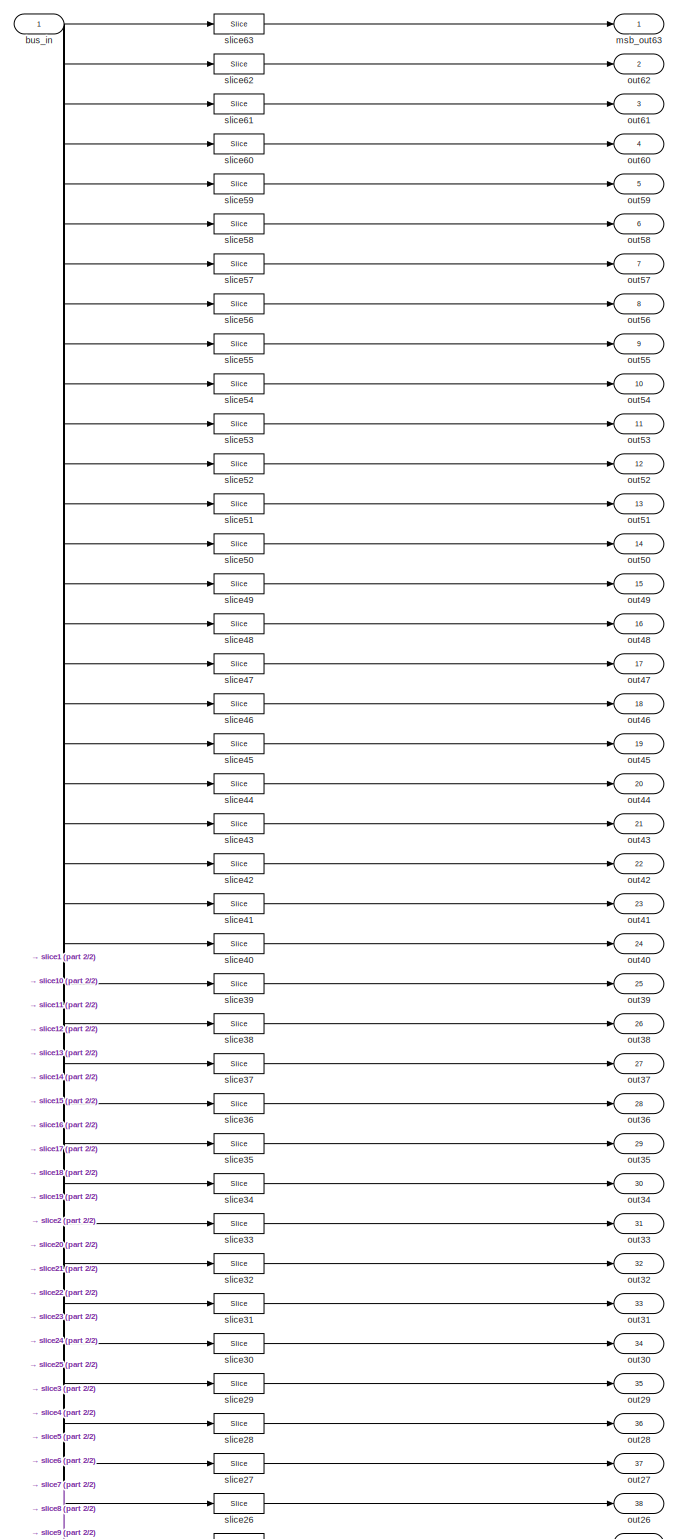
[diagram: rx_integrity_check0/xor1/bus_expand - part 1/2, full width, top band]
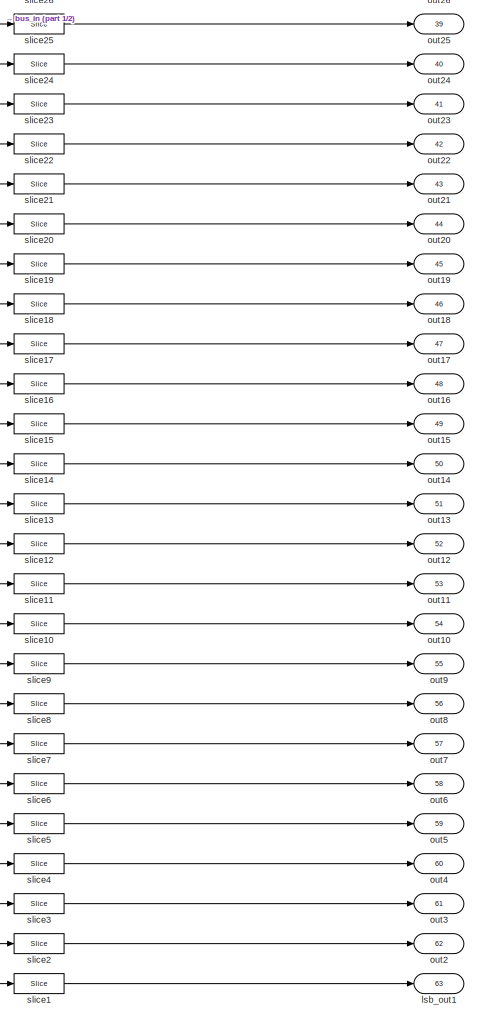
[diagram: rx_integrity_check0/xor1/bus_expand - part 2/2, bottom center region]
BLOCK [SubSystem] rx_integrity_check0/xor1/bus_expand
  AncestorBlock = casper_library_flow_control/bus_expand
  AttributesFormatString = 63 outputs
  Ports = [1, 63]
  RequestExecContextInheritance = off
  UserDataPersistent = on
BLOCK [Inport] rx_integrity_check0/xor1/bus_expand/bus_in
  IconDisplay = Port number
BLOCK [Outport] rx_integrity_check0/xor1/bus_expand/lsb_out1
  IconDisplay = Port number
  Port = 63
BLOCK [Outport] rx_integrity_check0/xor1/bus_expand/msb_out63
  IconDisplay = Port number
BLOCK [Outport] rx_integrity_check0/xor1/bus_expand/out10
  IconDisplay = Port number
  Port = 54
BLOCK [Outport] rx_integrity_check0/xor1/bus_expand/out11
  IconDisplay = Port number
  Port = 53
BLOCK [Outport] rx_integrity_check0/xor1/bus_expand/out12
  IconDisplay = Port number
  Port = 52
BLOCK [Outport] rx_integrity_check0/xor1/bus_expand/out13
  IconDisplay = Port number
  Port = 51
BLOCK [Outport] rx_integrity_check0/xor1/bus_expand/out14
  IconDisplay = Port number
  Port = 50
BLOCK [Outport] rx_integrity_check0/xor1/bus_expand/out15
  IconDisplay = Port number
  Port = 49
BLOCK [Outport] rx_integrity_check0/xor1/bus_expand/out16
  IconDisplay = Port number
  Port = 48
BLOCK [Outport] rx_integrity_check0/xor1/bus_expand/out17
  IconDisplay = Port number
  Port = 47
BLOCK [Outport] rx_integrity_check0/xor1/bus_expand/out18
  IconDisplay = Port number
  Port = 46
BLOCK [Outport] rx_integrity_check0/xor1/bus_expand/out19
  IconDisplay = Port number
  Port = 45
BLOCK [Outport] rx_integrity_check0/xor1/bus_expand/out2
  IconDisplay = Port number
  Port = 62
BLOCK [Outport] rx_integrity_check0/xor1/bus_expand/out20
  IconDisplay = Port number
  Port = 44
BLOCK [Outport] rx_integrity_check0/xor1/bus_expand/out21
  IconDisplay = Port number
  Port = 43
BLOCK [Outport] rx_integrity_check0/xor1/bus_expand/out22
  IconDisplay = Port number
  Port = 42
BLOCK [Outport] rx_integrity_check0/xor1/bus_expand/out23
  IconDisplay = Port number
  Port = 41
BLOCK [Outport] rx_integrity_check0/xor1/bus_expand/out24
  IconDisplay = Port number
  Port = 40
BLOCK [Outport] rx_integrity_check0/xor1/bus_expand/out25
  IconDisplay = Port number
  Port = 39
BLOCK [Outport] rx_integrity_check0/xor1/bus_expand/out26
  IconDisplay = Port number
  Port = 38
BLOCK [Outport] rx_integrity_check0/xor1/bus_expand/out27
  IconDisplay = Port number
  Port = 37
BLOCK [Outport] rx_integrity_check0/xor1/bus_expand/out28
  IconDisplay = Port number
  Port = 36
BLOCK [Outport] rx_integrity_check0/xor1/bus_expand/out29
  IconDisplay = Port number
  Port = 35
BLOCK [Outport] rx_integrity_check0/xor1/bus_expand/out3
  IconDisplay = Port number
  Port = 61
BLOCK [Outport] rx_integrity_check0/xor1/bus_expand/out30
  IconDisplay = Port number
  Port = 34
BLOCK [Outport] rx_integrity_check0/xor1/bus_expand/out31
  IconDisplay = Port number
  Port = 33
BLOCK [Outport] rx_integrity_check0/xor1/bus_expand/out32
  IconDisplay = Port number
  Port = 32
BLOCK [Outport] rx_integrity_check0/xor1/bus_expand/out33
  IconDisplay = Port number
  Port = 31
BLOCK [Outport] rx_integrity_check0/xor1/bus_expand/out34
  IconDisplay = Port number
  Port = 30
BLOCK [Outport] rx_integrity_check0/xor1/bus_expand/out35
  IconDisplay = Port number
  Port = 29
BLOCK [Outport] rx_integrity_check0/xor1/bus_expand/out36
  IconDisplay = Port number
  Port = 28
BLOCK [Outport] rx_integrity_check0/xor1/bus_expand/out37
  IconDisplay = Port number
  Port = 27
BLOCK [Outport] rx_integrity_check0/xor1/bus_expand/out38
  IconDisplay = Port number
  Port = 26
BLOCK [Outport] rx_integrity_check0/xor1/bus_expand/out39
  IconDisplay = Port number
  Port = 25
BLOCK [Outport] rx_integrity_check0/xor1/bus_expand/out4
  IconDisplay = Port number
  Port = 60
BLOCK [Outport] rx_integrity_check0/xor1/bus_expand/out40
  IconDisplay = Port number
  Port = 24
BLOCK [Outport] rx_integrity_check0/xor1/bus_expand/out41
  IconDisplay = Port number
  Port = 23
BLOCK [Outport] rx_integrity_check0/xor1/bus_expand/out42
  IconDisplay = Port number
  Port = 22
BLOCK [Outport] rx_integrity_check0/xor1/bus_expand/out43
  IconDisplay = Port number
  Port = 21
BLOCK [Outport] rx_integrity_check0/xor1/bus_expand/out44
  IconDisplay = Port number
  Port = 20
BLOCK [Outport] rx_integrity_check0/xor1/bus_expand/out45
  IconDisplay = Port number
  Port = 19
BLOCK [Outport] rx_integrity_check0/xor1/bus_expand/out46
  IconDisplay = Port number
  Port = 18
BLOCK [Outport] rx_integrity_check0/xor1/bus_expand/out47
  IconDisplay = Port number
  Port = 17
BLOCK [Outport] rx_integrity_check0/xor1/bus_expand/out48
  IconDisplay = Port number
  Port = 16
BLOCK [Outport] rx_integrity_check0/xor1/bus_expand/out49
  IconDisplay = Port number
  Port = 15
BLOCK [Outport] rx_integrity_check0/xor1/bus_expand/out5
  IconDisplay = Port number
  Port = 59
BLOCK [Outport] rx_integrity_check0/xor1/bus_expand/out50
  IconDisplay = Port number
  Port = 14
BLOCK [Outport] rx_integrity_check0/xor1/bus_expand/out51
  IconDisplay = Port number
  Port = 13
BLOCK [Outport] rx_integrity_check0/xor1/bus_expand/out52
  IconDisplay = Port number
  Port = 12
BLOCK [Outport] rx_integrity_check0/xor1/bus_expand/out53
  IconDisplay = Port number
  Port = 11
BLOCK [Outport] rx_integrity_check0/xor1/bus_expand/out54
  IconDisplay = Port number
  Port = 10
BLOCK [Outport] rx_integrity_check0/xor1/bus_expand/out55
  IconDisplay = Port number
  Port = 9
BLOCK [Outport] rx_integrity_check0/xor1/bus_expand/out56
  IconDisplay = Port number
  Port = 8
BLOCK [Outport] rx_integrity_check0/xor1/bus_expand/out57
  IconDisplay = Port number
  Port = 7
BLOCK [Outport] rx_integrity_check0/xor1/bus_expand/out58
  IconDisplay = Port number
  Port = 6
BLOCK [Outport] rx_integrity_check0/xor1/bus_expand/out59
  IconDisplay = Port number
  Port = 5
BLOCK [Outport] rx_integrity_check0/xor1/bus_expand/out6
  IconDisplay = Port number
  Port = 58
BLOCK [Outport] rx_integrity_check0/xor1/bus_expand/out60
  IconDisplay = Port number
  Port = 4
BLOCK [Outport] rx_integrity_check0/xor1/bus_expand/out61
  IconDisplay = Port number
  Port = 3
BLOCK [Outport] rx_integrity_check0/xor1/bus_expand/out62
  IconDisplay = Port number
  Port = 2
BLOCK [Outport] rx_integrity_check0/xor1/bus_expand/out7
  IconDisplay = Port number
  Port = 57
BLOCK [Outport] rx_integrity_check0/xor1/bus_expand/out8
  IconDisplay = Port number
  Port = 56
BLOCK [Outport] rx_integrity_check0/xor1/bus_expand/out9
  IconDisplay = Port number
  Port = 55
BLOCK [Reference] rx_integrity_check0/xor1/bus_expand/slice1  REF=xbsIndex_r4/Slice
  Ports = [1, 1]
  SourceBlock = xbsIndex_r4/Slice
  SourceType = Xilinx Bit Slice Extractor Block
BLOCK [Reference] rx_integrity_check0/xor1/bus_expand/slice10  REF=xbsIndex_r4/Slice
  Ports = [1, 1]
  SourceBlock = xbsIndex_r4/Slice
  SourceType = Xilinx Bit Slice Extractor Block
BLOCK [Reference] rx_integrity_check0/xor1/bus_expand/slice11  REF=xbsIndex_r4/Slice
  Ports = [1, 1]
  SourceBlock = xbsIndex_r4/Slice
  SourceType = Xilinx Bit Slice Extractor Block
BLOCK [Reference] rx_integrity_check0/xor1/bus_expand/slice12  REF=xbsIndex_r4/Slice
  Ports = [1, 1]
  SourceBlock = xbsIndex_r4/Slice
  SourceType = Xilinx Bit Slice Extractor Block
BLOCK [Reference] rx_integrity_check0/xor1/bus_expand/slice13  REF=xbsIndex_r4/Slice
  Ports = [1, 1]
  SourceBlock = xbsIndex_r4/Slice
  SourceType = Xilinx Bit Slice Extractor Block
BLOCK [Reference] rx_integrity_check0/xor1/bus_expand/slice14  REF=xbsIndex_r4/Slice
  Ports = [1, 1]
  SourceBlock = xbsIndex_r4/Slice
  SourceType = Xilinx Bit Slice Extractor Block
BLOCK [Reference] rx_integrity_check0/xor1/bus_expand/slice15  REF=xbsIndex_r4/Slice
  Ports = [1, 1]
  SourceBlock = xbsIndex_r4/Slice
  SourceType = Xilinx Bit Slice Extractor Block
BLOCK [Reference] rx_integrity_check0/xor1/bus_expand/slice16  REF=xbsIndex_r4/Slice
  Ports = [1, 1]
  SourceBlock = xbsIndex_r4/Slice
  SourceType = Xilinx Bit Slice Extractor Block
BLOCK [Reference] rx_integrity_check0/xor1/bus_expand/slice17  REF=xbsIndex_r4/Slice
  Ports = [1, 1]
  SourceBlock = xbsIndex_r4/Slice
  SourceType = Xilinx Bit Slice Extractor Block
BLOCK [Reference] rx_integrity_check0/xor1/bus_expand/slice18  REF=xbsIndex_r4/Slice
  Ports = [1, 1]
  SourceBlock = xbsIndex_r4/Slice
  SourceType = Xilinx Bit Slice Extractor Block
BLOCK [Reference] rx_integrity_check0/xor1/bus_expand/slice19  REF=xbsIndex_r4/Slice
  Ports = [1, 1]
  SourceBlock = xbsIndex_r4/Slice
  SourceType = Xilinx Bit Slice Extractor Block
BLOCK [Reference] rx_integrity_check0/xor1/bus_expand/slice2  REF=xbsIndex_r4/Slice
  Ports = [1, 1]
  SourceBlock = xbsIndex_r4/Slice
  SourceType = Xilinx Bit Slice Extractor Block
BLOCK [Reference] rx_integrity_check0/xor1/bus_expand/slice20  REF=xbsIndex_r4/Slice
  Ports = [1, 1]
  SourceBlock = xbsIndex_r4/Slice
  SourceType = Xilinx Bit Slice Extractor Block
BLOCK [Reference] rx_integrity_check0/xor1/bus_expand/slice21  REF=xbsIndex_r4/Slice
  Ports = [1, 1]
  SourceBlock = xbsIndex_r4/Slice
  SourceType = Xilinx Bit Slice Extractor Block
BLOCK [Reference] rx_integrity_check0/xor1/bus_expand/slice22  REF=xbsIndex_r4/Slice
  Ports = [1, 1]
  SourceBlock = xbsIndex_r4/Slice
  SourceType = Xilinx Bit Slice Extractor Block
BLOCK [Reference] rx_integrity_check0/xor1/bus_expand/slice23  REF=xbsIndex_r4/Slice
  Ports = [1, 1]
  SourceBlock = xbsIndex_r4/Slice
  SourceType = Xilinx Bit Slice Extractor Block
BLOCK [Reference] rx_integrity_check0/xor1/bus_expand/slice24  REF=xbsIndex_r4/Slice
  Ports = [1, 1]
  SourceBlock = xbsIndex_r4/Slice
  SourceType = Xilinx Bit Slice Extractor Block
BLOCK [Reference] rx_integrity_check0/xor1/bus_expand/slice25  REF=xbsIndex_r4/Slice
  Ports = [1, 1]
  SourceBlock = xbsIndex_r4/Slice
  SourceType = Xilinx Bit Slice Extractor Block
BLOCK [Reference] rx_integrity_check0/xor1/bus_expand/slice26  REF=xbsIndex_r4/Slice
  Ports = [1, 1]
  SourceBlock = xbsIndex_r4/Slice
  SourceType = Xilinx Bit Slice Extractor Block
BLOCK [Reference] rx_integrity_check0/xor1/bus_expand/slice27  REF=xbsIndex_r4/Slice
  Ports = [1, 1]
  SourceBlock = xbsIndex_r4/Slice
  SourceType = Xilinx Bit Slice Extractor Block
BLOCK [Reference] rx_integrity_check0/xor1/bus_expand/slice28  REF=xbsIndex_r4/Slice
  Ports = [1, 1]
  SourceBlock = xbsIndex_r4/Slice
  SourceType = Xilinx Bit Slice Extractor Block
BLOCK [Reference] rx_integrity_check0/xor1/bus_expand/slice29  REF=xbsIndex_r4/Slice
  Ports = [1, 1]
  SourceBlock = xbsIndex_r4/Slice
  SourceType = Xilinx Bit Slice Extractor Block
BLOCK [Reference] rx_integrity_check0/xor1/bus_expand/slice3  REF=xbsIndex_r4/Slice
  Ports = [1, 1]
  SourceBlock = xbsIndex_r4/Slice
  SourceType = Xilinx Bit Slice Extractor Block
BLOCK [Reference] rx_integrity_check0/xor1/bus_expand/slice30  REF=xbsIndex_r4/Slice
  Ports = [1, 1]
  SourceBlock = xbsIndex_r4/Slice
  SourceType = Xilinx Bit Slice Extractor Block
BLOCK [Reference] rx_integrity_check0/xor1/bus_expand/slice31  REF=xbsIndex_r4/Slice
  Ports = [1, 1]
  SourceBlock = xbsIndex_r4/Slice
  SourceType = Xilinx Bit Slice Extractor Block
BLOCK [Reference] rx_integrity_check0/xor1/bus_expand/slice32  REF=xbsIndex_r4/Slice
  Ports = [1, 1]
  SourceBlock = xbsIndex_r4/Slice
  SourceType = Xilinx Bit Slice Extractor Block
BLOCK [Reference] rx_integrity_check0/xor1/bus_expand/slice33  REF=xbsIndex_r4/Slice
  Ports = [1, 1]
  SourceBlock = xbsIndex_r4/Slice
  SourceType = Xilinx Bit Slice Extractor Block
BLOCK [Reference] rx_integrity_check0/xor1/bus_expand/slice34  REF=xbsIndex_r4/Slice
  Ports = [1, 1]
  SourceBlock = xbsIndex_r4/Slice
  SourceType = Xilinx Bit Slice Extractor Block
BLOCK [Reference] rx_integrity_check0/xor1/bus_expand/slice35  REF=xbsIndex_r4/Slice
  Ports = [1, 1]
  SourceBlock = xbsIndex_r4/Slice
  SourceType = Xilinx Bit Slice Extractor Block
BLOCK [Reference] rx_integrity_check0/xor1/bus_expand/slice36  REF=xbsIndex_r4/Slice
  Ports = [1, 1]
  SourceBlock = xbsIndex_r4/Slice
  SourceType = Xilinx Bit Slice Extractor Block
BLOCK [Reference] rx_integrity_check0/xor1/bus_expand/slice37  REF=xbsIndex_r4/Slice
  Ports = [1, 1]
  SourceBlock = xbsIndex_r4/Slice
  SourceType = Xilinx Bit Slice Extractor Block
BLOCK [Reference] rx_integrity_check0/xor1/bus_expand/slice38  REF=xbsIndex_r4/Slice
  Ports = [1, 1]
  SourceBlock = xbsIndex_r4/Slice
  SourceType = Xilinx Bit Slice Extractor Block
BLOCK [Reference] rx_integrity_check0/xor1/bus_expand/slice39  REF=xbsIndex_r4/Slice
  Ports = [1, 1]
  SourceBlock = xbsIndex_r4/Slice
  SourceType = Xilinx Bit Slice Extractor Block
BLOCK [Reference] rx_integrity_check0/xor1/bus_expand/slice4  REF=xbsIndex_r4/Slice
  Ports = [1, 1]
  SourceBlock = xbsIndex_r4/Slice
  SourceType = Xilinx Bit Slice Extractor Block
BLOCK [Reference] rx_integrity_check0/xor1/bus_expand/slice40  REF=xbsIndex_r4/Slice
  Ports = [1, 1]
  SourceBlock = xbsIndex_r4/Slice
  SourceType = Xilinx Bit Slice Extractor Block
BLOCK [Reference] rx_integrity_check0/xor1/bus_expand/slice41  REF=xbsIndex_r4/Slice
  Ports = [1, 1]
  SourceBlock = xbsIndex_r4/Slice
  SourceType = Xilinx Bit Slice Extractor Block
BLOCK [Reference] rx_integrity_check0/xor1/bus_expand/slice42  REF=xbsIndex_r4/Slice
  Ports = [1, 1]
  SourceBlock = xbsIndex_r4/Slice
  SourceType = Xilinx Bit Slice Extractor Block
BLOCK [Reference] rx_integrity_check0/xor1/bus_expand/slice43  REF=xbsIndex_r4/Slice
  Ports = [1, 1]
  SourceBlock = xbsIndex_r4/Slice
  SourceType = Xilinx Bit Slice Extractor Block
BLOCK [Reference] rx_integrity_check0/xor1/bus_expand/slice44  REF=xbsIndex_r4/Slice
  Ports = [1, 1]
  SourceBlock = xbsIndex_r4/Slice
  SourceType = Xilinx Bit Slice Extractor Block
BLOCK [Reference] rx_integrity_check0/xor1/bus_expand/slice45  REF=xbsIndex_r4/Slice
  Ports = [1, 1]
  SourceBlock = xbsIndex_r4/Slice
  SourceType = Xilinx Bit Slice Extractor Block
BLOCK [Reference] rx_integrity_check0/xor1/bus_expand/slice46  REF=xbsIndex_r4/Slice
  Ports = [1, 1]
  SourceBlock = xbsIndex_r4/Slice
  SourceType = Xilinx Bit Slice Extractor Block
BLOCK [Reference] rx_integrity_check0/xor1/bus_expand/slice47  REF=xbsIndex_r4/Slice
  Ports = [1, 1]
  SourceBlock = xbsIndex_r4/Slice
  SourceType = Xilinx Bit Slice Extractor Block
BLOCK [Reference] rx_integrity_check0/xor1/bus_expand/slice48  REF=xbsIndex_r4/Slice
  Ports = [1, 1]
  SourceBlock = xbsIndex_r4/Slice
  SourceType = Xilinx Bit Slice Extractor Block
BLOCK [Reference] rx_integrity_check0/xor1/bus_expand/slice49  REF=xbsIndex_r4/Slice
  Ports = [1, 1]
  SourceBlock = xbsIndex_r4/Slice
  SourceType = Xilinx Bit Slice Extractor Block
BLOCK [Reference] rx_integrity_check0/xor1/bus_expand/slice5  REF=xbsIndex_r4/Slice
  Ports = [1, 1]
  SourceBlock = xbsIndex_r4/Slice
  SourceType = Xilinx Bit Slice Extractor Block
BLOCK [Reference] rx_integrity_check0/xor1/bus_expand/slice50  REF=xbsIndex_r4/Slice
  Ports = [1, 1]
  SourceBlock = xbsIndex_r4/Slice
  SourceType = Xilinx Bit Slice Extractor Block
BLOCK [Reference] rx_integrity_check0/xor1/bus_expand/slice51  REF=xbsIndex_r4/Slice
  Ports = [1, 1]
  SourceBlock = xbsIndex_r4/Slice
  SourceType = Xilinx Bit Slice Extractor Block
BLOCK [Reference] rx_integrity_check0/xor1/bus_expand/slice52  REF=xbsIndex_r4/Slice
  Ports = [1, 1]
  SourceBlock = xbsIndex_r4/Slice
  SourceType = Xilinx Bit Slice Extractor Block
BLOCK [Reference] rx_integrity_check0/xor1/bus_expand/slice53  REF=xbsIndex_r4/Slice
  Ports = [1, 1]
  SourceBlock = xbsIndex_r4/Slice
  SourceType = Xilinx Bit Slice Extractor Block
BLOCK [Reference] rx_integrity_check0/xor1/bus_expand/slice54  REF=xbsIndex_r4/Slice
  Ports = [1, 1]
  SourceBlock = xbsIndex_r4/Slice
  SourceType = Xilinx Bit Slice Extractor Block
BLOCK [Reference] rx_integrity_check0/xor1/bus_expand/slice55  REF=xbsIndex_r4/Slice
  Ports = [1, 1]
  SourceBlock = xbsIndex_r4/Slice
  SourceType = Xilinx Bit Slice Extractor Block
BLOCK [Reference] rx_integrity_check0/xor1/bus_expand/slice56  REF=xbsIndex_r4/Slice
  Ports = [1, 1]
  SourceBlock = xbsIndex_r4/Slice
  SourceType = Xilinx Bit Slice Extractor Block
BLOCK [Reference] rx_integrity_check0/xor1/bus_expand/slice57  REF=xbsIndex_r4/Slice
  Ports = [1, 1]
  SourceBlock = xbsIndex_r4/Slice
  SourceType = Xilinx Bit Slice Extractor Block
BLOCK [Reference] rx_integrity_check0/xor1/bus_expand/slice58  REF=xbsIndex_r4/Slice
  Ports = [1, 1]
  SourceBlock = xbsIndex_r4/Slice
  SourceType = Xilinx Bit Slice Extractor Block
BLOCK [Reference] rx_integrity_check0/xor1/bus_expand/slice59  REF=xbsIndex_r4/Slice
  Ports = [1, 1]
  SourceBlock = xbsIndex_r4/Slice
  SourceType = Xilinx Bit Slice Extractor Block
BLOCK [Reference] rx_integrity_check0/xor1/bus_expand/slice6  REF=xbsIndex_r4/Slice
  Ports = [1, 1]
  SourceBlock = xbsIndex_r4/Slice
  SourceType = Xilinx Bit Slice Extractor Block
BLOCK [Reference] rx_integrity_check0/xor1/bus_expand/slice60  REF=xbsIndex_r4/Slice
  Ports = [1, 1]
  SourceBlock = xbsIndex_r4/Slice
  SourceType = Xilinx Bit Slice Extractor Block
BLOCK [Reference] rx_integrity_check0/xor1/bus_expand/slice61  REF=xbsIndex_r4/Slice
  Ports = [1, 1]
  SourceBlock = xbsIndex_r4/Slice
  SourceType = Xilinx Bit Slice Extractor Block
BLOCK [Reference] rx_integrity_check0/xor1/bus_expand/slice62  REF=xbsIndex_r4/Slice
  Ports = [1, 1]
  SourceBlock = xbsIndex_r4/Slice
  SourceType = Xilinx Bit Slice Extractor Block
BLOCK [Reference] rx_integrity_check0/xor1/bus_expand/slice63  REF=xbsIndex_r4/Slice
  Ports = [1, 1]
  SourceBlock = xbsIndex_r4/Slice
  SourceType = Xilinx Bit Slice Extractor Block
BLOCK [Reference] rx_integrity_check0/xor1/bus_expand/slice7  REF=xbsIndex_r4/Slice
  Ports = [1, 1]
  SourceBlock = xbsIndex_r4/Slice
  SourceType = Xilinx Bit Slice Extractor Block
BLOCK [Reference] rx_integrity_check0/xor1/bus_expand/slice8  REF=xbsIndex_r4/Slice
  Ports = [1, 1]
  SourceBlock = xbsIndex_r4/Slice
  SourceType = Xilinx Bit Slice Extractor Block
BLOCK [Reference] rx_integrity_check0/xor1/bus_expand/slice9  REF=xbsIndex_r4/Slice
  Ports = [1, 1]
  SourceBlock = xbsIndex_r4/Slice
  SourceType = Xilinx Bit Slice Extractor Block
BLOCK [SubSystem] rx_pkt_cnt_bad
  AncestorBlock = xps_library/Memory/software_register
  AttributesFormatString = 1output:uf32.0 = 32 bits
  Ports = [1, 1]
  RequestExecContextInheritance = off
  Tag = xps:sw_reg
BLOCK [Reference] rx_pkt_cnt_bad/assert_reg  REF=xbsIndex_r4/Assert
  Ports = [1, 1]
  SourceBlock = xbsIndex_r4/Assert
  SourceType = Xilinx Assert Block
BLOCK [Reference] rx_pkt_cnt_bad/cast_gw  REF=xbsIndex_r4/Convert
  Ports = [1, 1]
  SourceBlock = xbsIndex_r4/Convert
  SourceType = Xilinx Type Converter Block
BLOCK [Reference] rx_pkt_cnt_bad/io_delay  REF=xbsIndex_r4/Delay
  Ports = [1, 1]
  SourceBlock = xbsIndex_r4/Delay
  SourceType = Xilinx Delay Block
BLOCK [Inport] rx_pkt_cnt_bad/out_reg
  IconDisplay = Port number
BLOCK [Reference] rx_pkt_cnt_bad/reint1  REF=xbsIndex_r4/Reinterpret
  Ports = [1, 1]
  SourceBlock = xbsIndex_r4/Reinterpret
  SourceType = Xilinx Type Reinterpreter Block
BLOCK [Outport] rx_pkt_cnt_bad/sim_out
  IconDisplay = Port number
BLOCK [Reference] rx_pkt_cnt_bad/skarab_hmc_test_rx_pkt_cnt_bad_user_data_in  REF=xbsIndex_r4/Gateway Out
  Ports = [1, 1]
  SourceBlock = xbsIndex_r4/Gateway Out
  SourceType = Xilinx Gateway Out Block
BLOCK [SubSystem] rx_pkt_cnt_ok
  AncestorBlock = xps_library/Memory/software_register
  AttributesFormatString = 1output:uf32.0 = 32 bits
  Ports = [1, 1]
  RequestExecContextInheritance = off
  Tag = xps:sw_reg
BLOCK [Reference] rx_pkt_cnt_ok/assert_reg  REF=xbsIndex_r4/Assert
  Ports = [1, 1]
  SourceBlock = xbsIndex_r4/Assert
  SourceType = Xilinx Assert Block
BLOCK [Reference] rx_pkt_cnt_ok/cast_gw  REF=xbsIndex_r4/Convert
  Ports = [1, 1]
  SourceBlock = xbsIndex_r4/Convert
  SourceType = Xilinx Type Converter Block
BLOCK [Reference] rx_pkt_cnt_ok/io_delay  REF=xbsIndex_r4/Delay
  Ports = [1, 1]
  SourceBlock = xbsIndex_r4/Delay
  SourceType = Xilinx Delay Block
BLOCK [Inport] rx_pkt_cnt_ok/out_reg
  IconDisplay = Port number
BLOCK [Reference] rx_pkt_cnt_ok/reint1  REF=xbsIndex_r4/Reinterpret
  Ports = [1, 1]
  SourceBlock = xbsIndex_r4/Reinterpret
  SourceType = Xilinx Type Reinterpreter Block
BLOCK [Outport] rx_pkt_cnt_ok/sim_out
  IconDisplay = Port number
BLOCK [Reference] rx_pkt_cnt_ok/skarab_hmc_test_rx_pkt_cnt_ok_user_data_in  REF=xbsIndex_r4/Gateway Out
  Ports = [1, 1]
  SourceBlock = xbsIndex_r4/Gateway Out
  SourceType = Xilinx Gateway Out Block
BLOCK [SubSystem] rx_wrd_cnt_bad
  AncestorBlock = xps_library/Memory/software_register
  AttributesFormatString = 1output:uf32.0 = 32 bits
  Ports = [1, 1]
  RequestExecContextInheritance = off
  Tag = xps:sw_reg
BLOCK [Reference] rx_wrd_cnt_bad/assert_reg  REF=xbsIndex_r4/Assert
  Ports = [1, 1]
  SourceBlock = xbsIndex_r4/Assert
  SourceType = Xilinx Assert Block
BLOCK [Reference] rx_wrd_cnt_bad/cast_gw  REF=xbsIndex_r4/Convert
  Ports = [1, 1]
  SourceBlock = xbsIndex_r4/Convert
  SourceType = Xilinx Type Converter Block
BLOCK [Reference] rx_wrd_cnt_bad/io_delay  REF=xbsIndex_r4/Delay
  Ports = [1, 1]
  SourceBlock = xbsIndex_r4/Delay
  SourceType = Xilinx Delay Block
BLOCK [Inport] rx_wrd_cnt_bad/out_reg
  IconDisplay = Port number
BLOCK [Reference] rx_wrd_cnt_bad/reint1  REF=xbsIndex_r4/Reinterpret
  Ports = [1, 1]
  SourceBlock = xbsIndex_r4/Reinterpret
  SourceType = Xilinx Type Reinterpreter Block
BLOCK [Outport] rx_wrd_cnt_bad/sim_out
  IconDisplay = Port number
BLOCK [Reference] rx_wrd_cnt_bad/skarab_hmc_test_rx_wrd_cnt_bad_user_data_in  REF=xbsIndex_r4/Gateway Out
  Ports = [1, 1]
  SourceBlock = xbsIndex_r4/Gateway Out
  SourceType = Xilinx Gateway Out Block
BLOCK [SubSystem] rx_wrd_cnt_missing
  AncestorBlock = xps_library/Memory/software_register
  AttributesFormatString = 1output:uf32.0 = 32 bits
  Ports = [1, 1]
  RequestExecContextInheritance = off
  Tag = xps:sw_reg
BLOCK [Reference] rx_wrd_cnt_missing/assert_reg  REF=xbsIndex_r4/Assert
  Ports = [1, 1]
  SourceBlock = xbsIndex_r4/Assert
  SourceType = Xilinx Assert Block
BLOCK [Reference] rx_wrd_cnt_missing/cast_gw  REF=xbsIndex_r4/Convert
  Ports = [1, 1]
  SourceBlock = xbsIndex_r4/Convert
  SourceType = Xilinx Type Converter Block
BLOCK [Reference] rx_wrd_cnt_missing/io_delay  REF=xbsIndex_r4/Delay
  Ports = [1, 1]
  SourceBlock = xbsIndex_r4/Delay
  SourceType = Xilinx Delay Block
BLOCK [Inport] rx_wrd_cnt_missing/out_reg
  IconDisplay = Port number
BLOCK [Reference] rx_wrd_cnt_missing/reint1  REF=xbsIndex_r4/Reinterpret
  Ports = [1, 1]
  SourceBlock = xbsIndex_r4/Reinterpret
  SourceType = Xilinx Type Reinterpreter Block
BLOCK [Outport] rx_wrd_cnt_missing/sim_out
  IconDisplay = Port number
BLOCK [Reference] rx_wrd_cnt_missing/skarab_hmc_test_rx_wrd_cnt_missing_user_data_in  REF=xbsIndex_r4/Gateway Out
  Ports = [1, 1]
  SourceBlock = xbsIndex_r4/Gateway Out
  SourceType = Xilinx Gateway Out Block
BLOCK [SubSystem] status0
  AncestorBlock = xps_library/Memory/software_register
  AttributesFormatString = 1output:uf32.0 = 32 bits
  Ports = [1, 1]
  RequestExecContextInheritance = off
  Tag = xps:sw_reg
BLOCK [Reference] status0/assert_reg  REF=xbsIndex_r4/Assert
  Ports = [1, 1]
  SourceBlock = xbsIndex_r4/Assert
  SourceType = Xilinx Assert Block
BLOCK [Reference] status0/cast_gw  REF=xbsIndex_r4/Convert
  Ports = [1, 1]
  SourceBlock = xbsIndex_r4/Convert
  SourceType = Xilinx Type Converter Block
BLOCK [Reference] status0/io_delay  REF=xbsIndex_r4/Delay
  Ports = [1, 1]
  SourceBlock = xbsIndex_r4/Delay
  SourceType = Xilinx Delay Block
BLOCK [Inport] status0/out_reg
  IconDisplay = Port number
BLOCK [Reference] status0/reint1  REF=xbsIndex_r4/Reinterpret
  Ports = [1, 1]
  SourceBlock = xbsIndex_r4/Reinterpret
  SourceType = Xilinx Type Reinterpreter Block
BLOCK [Outport] status0/sim_out
  IconDisplay = Port number
BLOCK [Reference] status0/skarab_hmc_test_status0_user_data_in  REF=xbsIndex_r4/Gateway Out
  Ports = [1, 1]
  SourceBlock = xbsIndex_r4/Gateway Out
  SourceType = Xilinx Gateway Out Block
BLOCK [SubSystem] tx_pkt_cnt
  AncestorBlock = xps_library/Memory/software_register
  AttributesFormatString = 1output:uf32.0 = 32 bits
  Ports = [1, 1]
  RequestExecContextInheritance = off
  Tag = xps:sw_reg
BLOCK [Reference] tx_pkt_cnt/assert_reg  REF=xbsIndex_r4/Assert
  Ports = [1, 1]
  SourceBlock = xbsIndex_r4/Assert
  SourceType = Xilinx Assert Block
BLOCK [Reference] tx_pkt_cnt/cast_gw  REF=xbsIndex_r4/Convert
  Ports = [1, 1]
  SourceBlock = xbsIndex_r4/Convert
  SourceType = Xilinx Type Converter Block
BLOCK [Reference] tx_pkt_cnt/io_delay  REF=xbsIndex_r4/Delay
  Ports = [1, 1]
  SourceBlock = xbsIndex_r4/Delay
  SourceType = Xilinx Delay Block
BLOCK [Inport] tx_pkt_cnt/out_reg
  IconDisplay = Port number
BLOCK [Reference] tx_pkt_cnt/reint1  REF=xbsIndex_r4/Reinterpret
  Ports = [1, 1]
  SourceBlock = xbsIndex_r4/Reinterpret
  SourceType = Xilinx Type Reinterpreter Block
BLOCK [Outport] tx_pkt_cnt/sim_out
  IconDisplay = Port number
BLOCK [Reference] tx_pkt_cnt/skarab_hmc_test_tx_pkt_cnt_user_data_in  REF=xbsIndex_r4/Gateway Out
  Ports = [1, 1]
  SourceBlock = xbsIndex_r4/Gateway Out
  SourceType = Xilinx Gateway Out Block
ANNOTATION pkt_rate0: d is denominator -1
ANNOTATION pkt_rate0: issue enable signals at a rate of FPGA_CLK * (n/(d+1))
LINE Constant10:1 -> hmc:10
LINE Constant11:1 -> hmc:11
LINE Constant12:1 -> hmc:12
LINE Constant13:1 -> forty_gbe:9
LINE Constant1:1 -> control:1
LINE Constant2:1 -> ip0:1
LINE Constant3:1 -> forty_gbe:8
LINE Constant41:1 -> Relational:2
LINE Constant4:1 -> forty_gbe:7
LINE Constant5:1 -> pkt_size0:1
LINE Constant6:1 -> mem_access:1
LINE Constant7:1 -> hmc:7
LINE Constant8:1 -> hmc:8
LINE Constant9:1 -> hmc:9
LINE Constant:1 -> port0:1
LINE Convert12:1 -> forty_gbe:5
NET Convert13:1 -> Slice2:1, Slice3:1, forty_gbe:2
LINE Convert1:1 -> rx_wrd_cnt_bad:1
LINE Convert2:1 -> rx_wrd_cnt_missing:1
LINE Convert3:1 -> rx_pkt_cnt_ok:1
LINE Convert4:1 -> rx_pkt_cnt_bad:1
LINE Convert5:1 -> tx_pkt_cnt:1
LINE Convert6:1 -> hmc_status:1
LINE Convert7:1 -> hmc_rd_tag_out:1
LINE Convert:1 -> status0:1
NET Counter1:1 -> Delay20:1, Gateway Out12:1
LINE Counter3:1 -> Delay42:1
NET Counter:1 -> Slice15:1, Slice5:1, hmc:3
LINE Delay10:1 -> hmc:5
LINE Delay11:1 -> Convert7:1
LINE Delay12:1 -> Slice14:1
LINE Delay15:1 -> forty_gbe:4
LINE Delay16:1 -> Convert12:1
LINE Delay17:1 -> pkt_size_calc0:2
LINE Delay1:1 -> Goto1:1
LINE Delay20:1 -> Convert5:1
LINE Delay21:1 -> data_ins:2
LINE Delay22:1 -> data_ins:3
LINE Delay26:1 -> pkt_size_calc0:3
LINE Delay2:1 -> Goto:1
LINE Delay30:1 -> Convert13:1
NET Delay31:1 -> Gateway Out4:1, Logical1:1, forty_gbe:3
NET Delay32:1 -> Gateway Out5:1, Logical1:2, forty_gbe:6
LINE Delay37:1 -> pkt_cnt0:4
LINE Delay38:1 -> pkt_cnt0:3
NET Delay39:1 -> pkt_cnt0:2, rx_integrity_check0:3
LINE Delay3:1 -> Convert:1
LINE Delay40:1 -> rx_integrity_check0:2
LINE Delay41:1 -> Goto2:1
LINE Delay42:1 -> debug0:1
LINE Delay43:1 -> Counter3:1
LINE Delay4:1 -> Convert1:1
LINE Delay5:1 -> Convert2:1
LINE Delay6:1 -> Convert3:1
LINE Delay7:1 -> Convert4:1
LINE Delay8:1 -> Convert6:1
NET Delay9:1 -> bus_create1:6, hmc:4
LINE From10:1 -> Logical3:2
LINE From1:1 -> data_ins:1
LINE From2:1 -> rx_integrity_check0:1
LINE From3:1 -> Counter1:1
LINE From48:1 -> pkt_size_calc0:1
LINE From4:1 -> pkt_cnt0:1
LINE From5:1 -> Counter:1
NET From6:1 -> Delay9:1, bus_create1:4, hmc:1
LINE From:1 -> forty_gbe:1
LINE Gateway Out12:1 -> Scope4:1
LINE Gateway Out13:1 -> Scope4:2
LINE Gateway Out2:1 -> Scope1:1
LINE Gateway Out3:1 -> Scope1:2
LINE Gateway Out4:1 -> Scope1:3
LINE Gateway Out5:1 -> Scope1:4
NET Logical1:1 -> Counter1:2, Gateway Out13:1
LINE Logical3:1 -> Delay26:1
LINE Relational:1 -> Logical3:1
LINE Slice10:1 -> hmc_data_out159_128:1
LINE Slice11:1 -> hmc_data_out191_160:1
LINE Slice12:1 -> hmc_data_out223_192:1
LINE Slice13:1 -> hmc_data_out255_224:1
LINE Slice14:1 -> edge_detect:1
LINE Slice15:1 -> hmc:6
LINE Slice1:1 -> Delay1:1
LINE Slice2:1 -> Gateway Out2:1
LINE Slice3:1 -> Gateway Out3:1
LINE Slice4:1 -> hmc_data_out31_0:1
NET Slice5:1 -> Delay10:1, hmc:2
LINE Slice6:1 -> Delay41:1
LINE Slice7:1 -> hmc_data_out63_32:1
LINE Slice8:1 -> hmc_data_out95_64:1
LINE Slice9:1 -> hmc_data_out127_96:1
LINE Slice:1 -> Delay2:1
LINE bus_create1:1 -> Delay8:1
LINE bus_create:1 -> Delay3:1
NET control:1 -> Slice1:1, Slice6:1, Slice:1
LINE data_ins/Concat:1 -> data_ins/data:1
NET data_ins/Counter:1 -> data_ins/Delay:1, data_ins/xor:1
LINE data_ins/Delay1:1 -> data_ins/Logical3:1
LINE data_ins/Delay2:1 -> data_ins/Logical1:1
NET data_ins/Delay3:1 -> data_ins/Logical1:2, data_ins/Logical3:2
LINE data_ins/Delay:1 -> data_ins/Concat:2
LINE data_ins/Logical1:1 -> data_ins/eof_out:1
LINE data_ins/Logical3:1 -> data_ins/en_out:1
LINE data_ins/edge_detect:1 -> data_ins/Delay3:1
NET data_ins/en_in:1 -> data_ins/Counter:2, data_ins/Delay1:1
LINE data_ins/eof_in:1 -> data_ins/Delay2:1
NET data_ins/rst:1 -> data_ins/Counter:1, data_ins/edge_detect:1
LINE data_ins/xor/In1:1 -> data_ins/xor/bus_expand:1
LINE data_ins/xor/Logical:1 -> data_ins/xor/Out1:1
LINE data_ins/xor/bus_expand:1 -> data_ins/xor/Logical:1
LINE data_ins/xor/bus_expand:10 -> data_ins/xor/Logical:10
LINE data_ins/xor/bus_expand:11 -> data_ins/xor/Logical:11
LINE data_ins/xor/bus_expand:12 -> data_ins/xor/Logical:12
LINE data_ins/xor/bus_expand:13 -> data_ins/xor/Logical:13
LINE data_ins/xor/bus_expand:14 -> data_ins/xor/Logical:14
LINE data_ins/xor/bus_expand:15 -> data_ins/xor/Logical:15
LINE data_ins/xor/bus_expand:16 -> data_ins/xor/Logical:16
LINE data_ins/xor/bus_expand:17 -> data_ins/xor/Logical:17
LINE data_ins/xor/bus_expand:18 -> data_ins/xor/Logical:18
LINE data_ins/xor/bus_expand:19 -> data_ins/xor/Logical:19
LINE data_ins/xor/bus_expand:2 -> data_ins/xor/Logical:2
LINE data_ins/xor/bus_expand:20 -> data_ins/xor/Logical:20
LINE data_ins/xor/bus_expand:21 -> data_ins/xor/Logical:21
LINE data_ins/xor/bus_expand:22 -> data_ins/xor/Logical:22
LINE data_ins/xor/bus_expand:23 -> data_ins/xor/Logical:23
LINE data_ins/xor/bus_expand:24 -> data_ins/xor/Logical:24
LINE data_ins/xor/bus_expand:25 -> data_ins/xor/Logical:25
LINE data_ins/xor/bus_expand:26 -> data_ins/xor/Logical:26
LINE data_ins/xor/bus_expand:27 -> data_ins/xor/Logical:27
LINE data_ins/xor/bus_expand:28 -> data_ins/xor/Logical:28
LINE data_ins/xor/bus_expand:29 -> data_ins/xor/Logical:29
LINE data_ins/xor/bus_expand:3 -> data_ins/xor/Logical:3
LINE data_ins/xor/bus_expand:30 -> data_ins/xor/Logical:30
LINE data_ins/xor/bus_expand:31 -> data_ins/xor/Logical:31
LINE data_ins/xor/bus_expand:32 -> data_ins/xor/Logical:32
LINE data_ins/xor/bus_expand:33 -> data_ins/xor/Logical:33
LINE data_ins/xor/bus_expand:34 -> data_ins/xor/Logical:34
LINE data_ins/xor/bus_expand:35 -> data_ins/xor/Logical:35
LINE data_ins/xor/bus_expand:36 -> data_ins/xor/Logical:36
LINE data_ins/xor/bus_expand:37 -> data_ins/xor/Logical:37
LINE data_ins/xor/bus_expand:38 -> data_ins/xor/Logical:38
LINE data_ins/xor/bus_expand:39 -> data_ins/xor/Logical:39
LINE data_ins/xor/bus_expand:4 -> data_ins/xor/Logical:4
LINE data_ins/xor/bus_expand:40 -> data_ins/xor/Logical:40
LINE data_ins/xor/bus_expand:41 -> data_ins/xor/Logical:41
LINE data_ins/xor/bus_expand:42 -> data_ins/xor/Logical:42
LINE data_ins/xor/bus_expand:43 -> data_ins/xor/Logical:43
LINE data_ins/xor/bus_expand:44 -> data_ins/xor/Logical:44
LINE data_ins/xor/bus_expand:45 -> data_ins/xor/Logical:45
LINE data_ins/xor/bus_expand:46 -> data_ins/xor/Logical:46
LINE data_ins/xor/bus_expand:47 -> data_ins/xor/Logical:47
LINE data_ins/xor/bus_expand:48 -> data_ins/xor/Logical:48
LINE data_ins/xor/bus_expand:49 -> data_ins/xor/Logical:49
LINE data_ins/xor/bus_expand:5 -> data_ins/xor/Logical:5
LINE data_ins/xor/bus_expand:50 -> data_ins/xor/Logical:50
LINE data_ins/xor/bus_expand:51 -> data_ins/xor/Logical:51
LINE data_ins/xor/bus_expand:52 -> data_ins/xor/Logical:52
LINE data_ins/xor/bus_expand:53 -> data_ins/xor/Logical:53
LINE data_ins/xor/bus_expand:54 -> data_ins/xor/Logical:54
LINE data_ins/xor/bus_expand:55 -> data_ins/xor/Logical:55
LINE data_ins/xor/bus_expand:56 -> data_ins/xor/Logical:56
LINE data_ins/xor/bus_expand:57 -> data_ins/xor/Logical:57
LINE data_ins/xor/bus_expand:58 -> data_ins/xor/Logical:58
LINE data_ins/xor/bus_expand:59 -> data_ins/xor/Logical:59
LINE data_ins/xor/bus_expand:6 -> data_ins/xor/Logical:6
LINE data_ins/xor/bus_expand:60 -> data_ins/xor/Logical:60
LINE data_ins/xor/bus_expand:61 -> data_ins/xor/Logical:61
LINE data_ins/xor/bus_expand:62 -> data_ins/xor/Logical:62
LINE data_ins/xor/bus_expand:63 -> data_ins/xor/Logical:63
LINE data_ins/xor/bus_expand:7 -> data_ins/xor/Logical:7
LINE data_ins/xor/bus_expand:8 -> data_ins/xor/Logical:8
LINE data_ins/xor/bus_expand:9 -> data_ins/xor/Logical:9
LINE data_ins/xor:1 -> data_ins/Concat:1
LINE data_ins:1 -> Delay30:1
LINE data_ins:2 -> Delay31:1
LINE data_ins:3 -> Delay32:1
LINE debug0:1 -> Terminator12:1
LINE edge_detect:1 -> Goto3:1
LINE forty_gbe:1 -> bus_create:1
LINE forty_gbe:10 -> Delay38:1
LINE forty_gbe:11 -> Delay37:1
LINE forty_gbe:12 -> bus_create:6
LINE forty_gbe:13 -> Terminator25:1
LINE forty_gbe:14 -> Terminator26:1
LINE forty_gbe:2 -> bus_create:2
LINE forty_gbe:3 -> bus_create:3
LINE forty_gbe:4 -> bus_create:4
LINE forty_gbe:5 -> bus_create:5
LINE forty_gbe:6 -> Delay40:1
LINE forty_gbe:7 -> Delay39:1
LINE forty_gbe:8 -> Terminator6:1
LINE forty_gbe:9 -> Terminator7:1
NET hmc:1 -> Slice10:1, Slice11:1, Slice12:1, Slice13:1, Slice4:1, Slice7:1, Slice8:1, Slice9:1
LINE hmc:10 -> Terminator24:1
LINE hmc:11 -> bus_create1:5
LINE hmc:2 -> bus_create1:1
LINE hmc:3 -> bus_create1:3
LINE hmc:4 -> bus_create1:2
LINE hmc:5 -> Delay11:1
LINE hmc:6 -> Terminator20:1
LINE hmc:7 -> Terminator19:1
LINE hmc:8 -> Terminator22:1
LINE hmc:9 -> Terminator23:1
LINE hmc_data_out127_96:1 -> Terminator14:1
LINE hmc_data_out159_128:1 -> Terminator15:1
LINE hmc_data_out191_160:1 -> Terminator16:1
LINE hmc_data_out223_192:1 -> Terminator17:1
LINE hmc_data_out255_224:1 -> Terminator18:1
LINE hmc_data_out31_0:1 -> Terminator10:1
LINE hmc_data_out63_32:1 -> Terminator11:1
LINE hmc_data_out95_64:1 -> Terminator13:1
LINE hmc_rd_tag_out:1 -> Terminator9:1
LINE hmc_status:1 -> Terminator8:1
LINE ip0:1 -> Delay15:1
LINE mem_access:1 -> Delay12:1
LINE pkt_cnt0/Counter1:1 -> pkt_cnt0/bad_cnt:1
LINE pkt_cnt0/Counter:1 -> pkt_cnt0/ok_cnt:1
LINE pkt_cnt0/Inverter:1 -> pkt_cnt0/Logical:3
LINE pkt_cnt0/Logical1:1 -> pkt_cnt0/Counter1:2
LINE pkt_cnt0/Logical:1 -> pkt_cnt0/Counter:2
NET pkt_cnt0/bad:1 -> pkt_cnt0/Inverter:1, pkt_cnt0/Logical1:3
NET pkt_cnt0/eof:1 -> pkt_cnt0/Logical1:2, pkt_cnt0/Logical:2
NET pkt_cnt0/rst:1 -> pkt_cnt0/Counter1:1, pkt_cnt0/Counter:1
NET pkt_cnt0/valid:1 -> pkt_cnt0/Logical1:1, pkt_cnt0/Logical:1
LINE pkt_cnt0:1 -> Delay6:1
LINE pkt_cnt0:2 -> Delay7:1
LINE pkt_rate0/Constant6:1 -> pkt_rate0/d:1
LINE pkt_rate0/Constant7:1 -> pkt_rate0/n:1
LINE pkt_rate0/Counter3:1 -> pkt_rate0/Relational2:1
LINE pkt_rate0/Delay2:1 -> pkt_rate0/Counter3:1
NET pkt_rate0/Relational1:1 -> pkt_rate0/edge_detect1:1, pkt_rate0/strt_cnt:1
LINE pkt_rate0/Relational2:1 -> pkt_rate0/en:1
LINE pkt_rate0/d:1 -> pkt_rate0/Relational1:2
LINE pkt_rate0/edge_detect1:1 -> pkt_rate0/Delay2:1
LINE pkt_rate0/n:1 -> pkt_rate0/Relational2:2
LINE pkt_rate0/strt_cnt:1 -> pkt_rate0/Relational1:1
NET pkt_rate0:1 -> Delay43:1, Logical3:3
NET pkt_size0:1 -> Delay17:1, Relational:1
LINE pkt_size_calc0/Counter1:1 -> pkt_size_calc0/Relational:1
LINE pkt_size_calc0/Delay1:1 -> pkt_size_calc0/Delay2:1
LINE pkt_size_calc0/Delay2:1 -> pkt_size_calc0/en_out:1
LINE pkt_size_calc0/Logical3:1 -> pkt_size_calc0/Counter1:1
NET pkt_size_calc0/Relational:1 -> pkt_size_calc0/Logical3:1, pkt_size_calc0/edge_detect:1
LINE pkt_size_calc0/edge_detect:1 -> pkt_size_calc0/eof:1
NET pkt_size_calc0/en_in:1 -> pkt_size_calc0/Counter1:2, pkt_size_calc0/Delay1:1
LINE pkt_size_calc0/rst:1 -> pkt_size_calc0/Logical3:2
LINE pkt_size_calc0/size:1 -> pkt_size_calc0/Relational:2
LINE pkt_size_calc0:1 -> Delay21:1
LINE pkt_size_calc0:2 -> Delay22:1
LINE port0:1 -> Delay16:1
LINE rx_integrity_check0/AddSub:1 -> rx_integrity_check0/Register2:1
LINE rx_integrity_check0/Counter1:1 -> rx_integrity_check0/fail_cnt:1
LINE rx_integrity_check0/Counter:1 -> rx_integrity_check0/Register1:1
LINE rx_integrity_check0/Delay1:1 -> rx_integrity_check0/Delay4:1
LINE rx_integrity_check0/Delay2:1 -> rx_integrity_check0/AddSub:1
LINE rx_integrity_check0/Delay3:1 -> rx_integrity_check0/Logical:1
NET rx_integrity_check0/Delay4:1 -> rx_integrity_check0/Logical1:2, rx_integrity_check0/Register2:2
LINE rx_integrity_check0/Delay:1 -> rx_integrity_check0/AddSub:2
LINE rx_integrity_check0/Logical1:1 -> rx_integrity_check0/Counter1:2
LINE rx_integrity_check0/Logical:1 -> rx_integrity_check0/Logical1:1
LINE rx_integrity_check0/Register1:1 -> rx_integrity_check0/Delay:1
LINE rx_integrity_check0/Register2:1 -> rx_integrity_check0/offset:1
NET rx_integrity_check0/Register:1 -> rx_integrity_check0/Slice1:1, rx_integrity_check0/Slice2:1, rx_integrity_check0/Slice3:1
LINE rx_integrity_check0/Slice1:1 -> rx_integrity_check0/Delay2:1
LINE rx_integrity_check0/Slice2:1 -> rx_integrity_check0/Delay3:1
LINE rx_integrity_check0/Slice3:1 -> rx_integrity_check0/xor1:1
LINE rx_integrity_check0/data_in:1 -> rx_integrity_check0/Register:1
NET rx_integrity_check0/en_in:1 -> rx_integrity_check0/Counter:2, rx_integrity_check0/Delay1:1, rx_integrity_check0/Register1:2, rx_integrity_check0/Register:2
NET rx_integrity_check0/rst:1 -> rx_integrity_check0/Counter1:1, rx_integrity_check0/Counter:1
LINE rx_integrity_check0/xor1/In1:1 -> rx_integrity_check0/xor1/bus_expand:1
LINE rx_integrity_check0/xor1/Logical:1 -> rx_integrity_check0/xor1/Out1:1
LINE rx_integrity_check0/xor1/bus_expand:1 -> rx_integrity_check0/xor1/Logical:1
LINE rx_integrity_check0/xor1/bus_expand:10 -> rx_integrity_check0/xor1/Logical:10
LINE rx_integrity_check0/xor1/bus_expand:11 -> rx_integrity_check0/xor1/Logical:11
LINE rx_integrity_check0/xor1/bus_expand:12 -> rx_integrity_check0/xor1/Logical:12
LINE rx_integrity_check0/xor1/bus_expand:13 -> rx_integrity_check0/xor1/Logical:13
LINE rx_integrity_check0/xor1/bus_expand:14 -> rx_integrity_check0/xor1/Logical:14
LINE rx_integrity_check0/xor1/bus_expand:15 -> rx_integrity_check0/xor1/Logical:15
LINE rx_integrity_check0/xor1/bus_expand:16 -> rx_integrity_check0/xor1/Logical:16
LINE rx_integrity_check0/xor1/bus_expand:17 -> rx_integrity_check0/xor1/Logical:17
LINE rx_integrity_check0/xor1/bus_expand:18 -> rx_integrity_check0/xor1/Logical:18
LINE rx_integrity_check0/xor1/bus_expand:19 -> rx_integrity_check0/xor1/Logical:19
LINE rx_integrity_check0/xor1/bus_expand:2 -> rx_integrity_check0/xor1/Logical:2
LINE rx_integrity_check0/xor1/bus_expand:20 -> rx_integrity_check0/xor1/Logical:20
LINE rx_integrity_check0/xor1/bus_expand:21 -> rx_integrity_check0/xor1/Logical:21
LINE rx_integrity_check0/xor1/bus_expand:22 -> rx_integrity_check0/xor1/Logical:22
LINE rx_integrity_check0/xor1/bus_expand:23 -> rx_integrity_check0/xor1/Logical:23
LINE rx_integrity_check0/xor1/bus_expand:24 -> rx_integrity_check0/xor1/Logical:24
LINE rx_integrity_check0/xor1/bus_expand:25 -> rx_integrity_check0/xor1/Logical:25
LINE rx_integrity_check0/xor1/bus_expand:26 -> rx_integrity_check0/xor1/Logical:26
LINE rx_integrity_check0/xor1/bus_expand:27 -> rx_integrity_check0/xor1/Logical:27
LINE rx_integrity_check0/xor1/bus_expand:28 -> rx_integrity_check0/xor1/Logical:28
LINE rx_integrity_check0/xor1/bus_expand:29 -> rx_integrity_check0/xor1/Logical:29
LINE rx_integrity_check0/xor1/bus_expand:3 -> rx_integrity_check0/xor1/Logical:3
LINE rx_integrity_check0/xor1/bus_expand:30 -> rx_integrity_check0/xor1/Logical:30
LINE rx_integrity_check0/xor1/bus_expand:31 -> rx_integrity_check0/xor1/Logical:31
LINE rx_integrity_check0/xor1/bus_expand:32 -> rx_integrity_check0/xor1/Logical:32
LINE rx_integrity_check0/xor1/bus_expand:33 -> rx_integrity_check0/xor1/Logical:33
LINE rx_integrity_check0/xor1/bus_expand:34 -> rx_integrity_check0/xor1/Logical:34
LINE rx_integrity_check0/xor1/bus_expand:35 -> rx_integrity_check0/xor1/Logical:35
LINE rx_integrity_check0/xor1/bus_expand:36 -> rx_integrity_check0/xor1/Logical:36
LINE rx_integrity_check0/xor1/bus_expand:37 -> rx_integrity_check0/xor1/Logical:37
LINE rx_integrity_check0/xor1/bus_expand:38 -> rx_integrity_check0/xor1/Logical:38
LINE rx_integrity_check0/xor1/bus_expand:39 -> rx_integrity_check0/xor1/Logical:39
LINE rx_integrity_check0/xor1/bus_expand:4 -> rx_integrity_check0/xor1/Logical:4
LINE rx_integrity_check0/xor1/bus_expand:40 -> rx_integrity_check0/xor1/Logical:40
LINE rx_integrity_check0/xor1/bus_expand:41 -> rx_integrity_check0/xor1/Logical:41
LINE rx_integrity_check0/xor1/bus_expand:42 -> rx_integrity_check0/xor1/Logical:42
LINE rx_integrity_check0/xor1/bus_expand:43 -> rx_integrity_check0/xor1/Logical:43
LINE rx_integrity_check0/xor1/bus_expand:44 -> rx_integrity_check0/xor1/Logical:44
LINE rx_integrity_check0/xor1/bus_expand:45 -> rx_integrity_check0/xor1/Logical:45
LINE rx_integrity_check0/xor1/bus_expand:46 -> rx_integrity_check0/xor1/Logical:46
LINE rx_integrity_check0/xor1/bus_expand:47 -> rx_integrity_check0/xor1/Logical:47
LINE rx_integrity_check0/xor1/bus_expand:48 -> rx_integrity_check0/xor1/Logical:48
LINE rx_integrity_check0/xor1/bus_expand:49 -> rx_integrity_check0/xor1/Logical:49
LINE rx_integrity_check0/xor1/bus_expand:5 -> rx_integrity_check0/xor1/Logical:5
LINE rx_integrity_check0/xor1/bus_expand:50 -> rx_integrity_check0/xor1/Logical:50
LINE rx_integrity_check0/xor1/bus_expand:51 -> rx_integrity_check0/xor1/Logical:51
LINE rx_integrity_check0/xor1/bus_expand:52 -> rx_integrity_check0/xor1/Logical:52
LINE rx_integrity_check0/xor1/bus_expand:53 -> rx_integrity_check0/xor1/Logical:53
LINE rx_integrity_check0/xor1/bus_expand:54 -> rx_integrity_check0/xor1/Logical:54
LINE rx_integrity_check0/xor1/bus_expand:55 -> rx_integrity_check0/xor1/Logical:55
LINE rx_integrity_check0/xor1/bus_expand:56 -> rx_integrity_check0/xor1/Logical:56
LINE rx_integrity_check0/xor1/bus_expand:57 -> rx_integrity_check0/xor1/Logical:57
LINE rx_integrity_check0/xor1/bus_expand:58 -> rx_integrity_check0/xor1/Logical:58
LINE rx_integrity_check0/xor1/bus_expand:59 -> rx_integrity_check0/xor1/Logical:59
LINE rx_integrity_check0/xor1/bus_expand:6 -> rx_integrity_check0/xor1/Logical:6
LINE rx_integrity_check0/xor1/bus_expand:60 -> rx_integrity_check0/xor1/Logical:60
LINE rx_integrity_check0/xor1/bus_expand:61 -> rx_integrity_check0/xor1/Logical:61
LINE rx_integrity_check0/xor1/bus_expand:62 -> rx_integrity_check0/xor1/Logical:62
LINE rx_integrity_check0/xor1/bus_expand:63 -> rx_integrity_check0/xor1/Logical:63
LINE rx_integrity_check0/xor1/bus_expand:7 -> rx_integrity_check0/xor1/Logical:7
LINE rx_integrity_check0/xor1/bus_expand:8 -> rx_integrity_check0/xor1/Logical:8
LINE rx_integrity_check0/xor1/bus_expand:9 -> rx_integrity_check0/xor1/Logical:9
LINE rx_integrity_check0/xor1:1 -> rx_integrity_check0/Logical:2
LINE rx_integrity_check0:1 -> Delay4:1
LINE rx_integrity_check0:2 -> Delay5:1
LINE rx_pkt_cnt_bad:1 -> Terminator1:1
LINE rx_pkt_cnt_ok:1 -> Terminator:1
LINE rx_wrd_cnt_bad:1 -> Terminator3:1
LINE rx_wrd_cnt_missing:1 -> Terminator4:1
LINE status0:1 -> Terminator5:1
LINE tx_pkt_cnt:1 -> Terminator2:1
note: NET lines group one-source signal fan-out (src -> all destinations, sorted); 1:1 wires keep LINE
